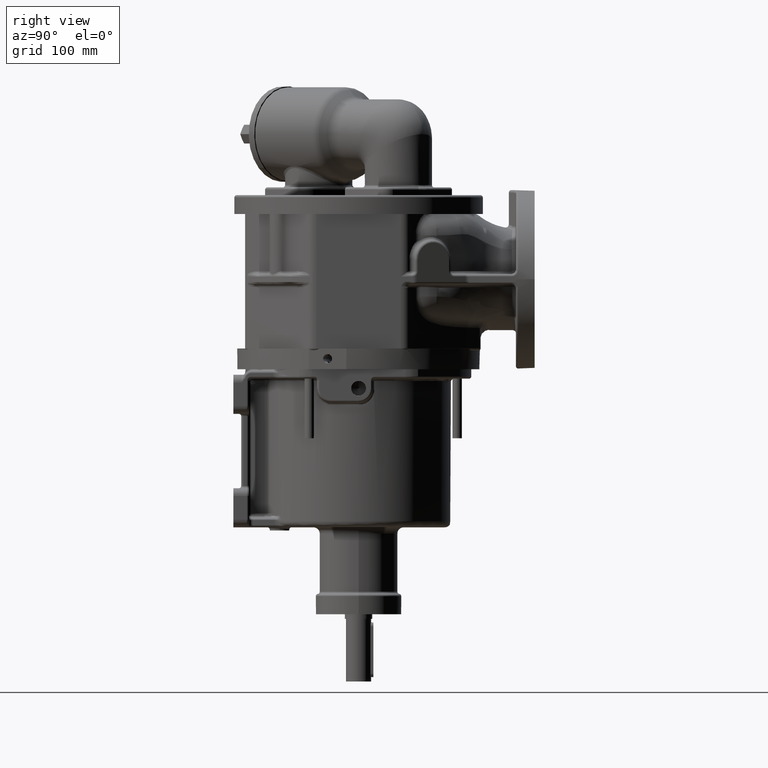
[diagram: clean part render]
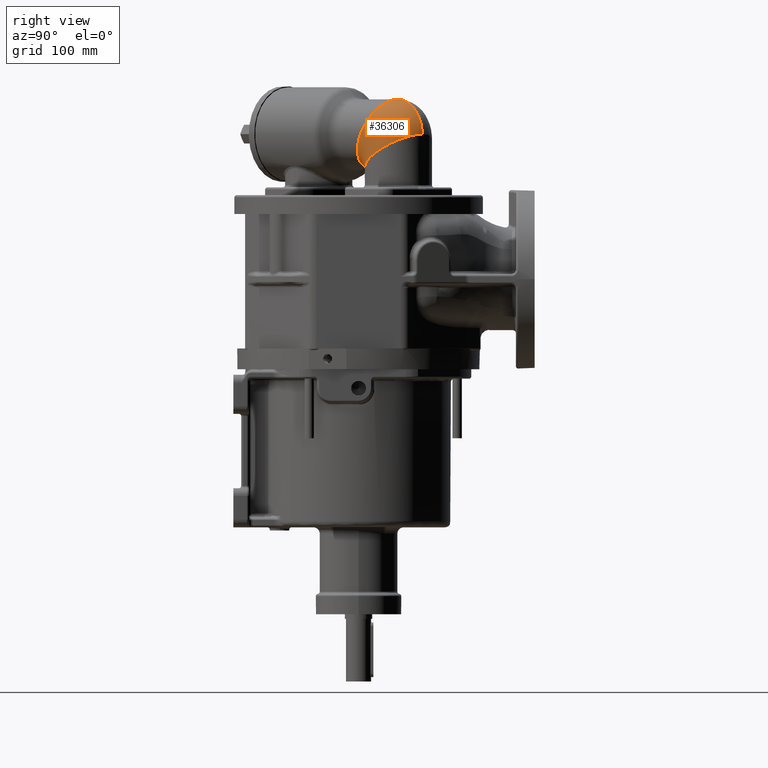
[diagram: same view with one face highlighted and labeled with its STEP entity id]
A machine part, right view. The second image highlights one B-rep face of the part: STEP entity #36306.
In plain terms, the highlighted face is a freeform B-spline surface patch.
Its self-contained STEP definition (entity closure, byte-faithful):
#3552=CARTESIAN_POINT('',(8.131727983645E1,8.131727983645E1,2.705E2));
#3553=CARTESIAN_POINT('',(8.231230049448E1,8.032225917843E1,2.705E2));
#3554=CARTESIAN_POINT('',(8.420457561934E1,7.823445523306E1,2.704220279288E2));
#3555=CARTESIAN_POINT('',(8.672236103078E1,7.483961470347E1,2.700722799795E2));
#3556=CARTESIAN_POINT('',(8.889526970420E1,7.121433554473E1,2.694931104514E2));
#3557=CARTESIAN_POINT('',(9.070237582687E1,6.739353069132E1,2.686900970636E2));
#3558=CARTESIAN_POINT('',(9.212627584882E1,6.341399671277E1,2.676709732742E2));
#3559=CARTESIAN_POINT('',(9.315325686934E1,5.931405866185E1,2.664455538021E2));
#3560=CARTESIAN_POINT('',(9.377342849044E1,5.513320119259E1,2.650256401070E2));
#3561=CARTESIAN_POINT('',(9.398081812291E1,5.091168824541E1,2.634249067338E2));
#3562=CARTESIAN_POINT('',(9.377342849052E1,4.669017529837E1,2.616587696200E2));
#3563=CARTESIAN_POINT('',(9.315325686901E1,4.250931782869E1,2.597442376315E2));
#3564=CARTESIAN_POINT('',(9.212627585005E1,3.840937977933E1,2.576997487579E2));
#3565=CARTESIAN_POINT('',(9.070237582228E1,3.442984579495E1,2.555449925447E2));
#3566=CARTESIAN_POINT('',(8.889526972134E1,3.060904096327E1,2.533007204721E2));
#3567=CARTESIAN_POINT('',(8.672236096684E1,2.698376172347E1,2.509885461071E2));
#3568=CARTESIAN_POINT('',(8.420457585794E1,2.358892149641E1,2.486307369527E2));
#3569=CARTESIAN_POINT('',(8.136616204158E1,2.045721444928E1,2.4625E2));
#3570=CARTESIAN_POINT('',(7.823445499446E1,1.761880063292E1,2.438692630473E2));
#3571=CARTESIAN_POINT('',(7.483961476740E1,1.510101552402E1,2.415114538929E2));
#3572=CARTESIAN_POINT('',(7.121433552759E1,1.292810676953E1,2.391992795278E2));
#3573=CARTESIAN_POINT('',(6.739353069591E1,1.112100066858E1,2.369550074552E2));
#3574=CARTESIAN_POINT('',(6.341399671153E1,9.697100640810E0,2.348002512420E2));
#3575=CARTESIAN_POINT('',(5.931405866218E1,8.670119621851E0,2.327557623684E2));
#3576=CARTESIAN_POINT('',(5.513320119249E1,8.049948000338E0,2.308412303799E2));
#3577=CARTESIAN_POINT('',(5.091168824545E1,7.842558367958E0,2.290750932661E2));
#3578=CARTESIAN_POINT('',(4.669017529827E1,8.049948000420E0,2.274743598929E2));
#3579=CARTESIAN_POINT('',(4.250931782901E1,8.670119621524E0,2.260544461978E2));
#3580=CARTESIAN_POINT('',(3.840937977809E1,9.697100642041E0,2.248290267258E2));
#3581=CARTESIAN_POINT('',(3.442984579954E1,1.112100066400E1,2.238099029363E2));
#3582=CARTESIAN_POINT('',(3.060904094613E1,1.292810678666E1,2.230068895485E2));
#3583=CARTESIAN_POINT('',(2.698376178740E1,1.510101546009E1,2.224277200204E2));
#3584=CARTESIAN_POINT('',(2.358892125781E1,1.761880087153E1,2.220779720711E2));
#3585=CARTESIAN_POINT('',(2.150111731243E1,1.951107599638E1,2.22E2));
#3586=CARTESIAN_POINT('',(2.050609665441E1,2.050609665441E1,2.22E2));
#3609=CARTESIAN_POINT('',(4.985102807365E1,4.985102807365E1,3.15E2));
#3610=CARTESIAN_POINT('',(5.088075875463E1,5.088075875463E1,3.15E2));
#3611=CARTESIAN_POINT('',(5.294021827353E1,5.294021827353E1,3.148569172304E2));
#3612=CARTESIAN_POINT('',(5.599965844069E1,5.599965844069E1,3.142151117151E2));
#3613=CARTESIAN_POINT('',(5.899988353989E1,5.899988353989E1,3.131523057769E2));
#3614=CARTESIAN_POINT('',(6.191200026588E1,6.191200026588E1,3.116787348179E2));
#3615=CARTESIAN_POINT('',(6.470796320801E1,6.470796320801E1,3.098085901320E2));
#3616=CARTESIAN_POINT('',(6.736084575078E1,6.736084575078E1,3.075598822350E2));
#3617=CARTESIAN_POINT('',(6.984509917545E1,6.984509917545E1,3.049542674129E2));
#3618=CARTESIAN_POINT('',(7.213679876608E1,7.213679876608E1,3.020168391612E2));
#3619=CARTESIAN_POINT('',(7.421387420215E1,7.421387420215E1,2.987758865192E2));
#3620=CARTESIAN_POINT('',(7.605632211196E1,7.605632211196E1,2.952626216337E2));
#3621=CARTESIAN_POINT('',(7.764639871490E1,7.764639871490E1,2.915108791623E2));
#3622=CARTESIAN_POINT('',(7.896879070407E1,7.896879070407E1,2.875567904497E2));
#3623=CARTESIAN_POINT('',(8.001076272172E1,8.001076272172E1,2.834384354805E2));
#3624=CARTESIAN_POINT('',(8.076228000772E1,8.076228000773E1,2.791954764551E2));
#3625=CARTESIAN_POINT('',(8.121610503979E1,8.121610503979E1,2.748687746774E2));
#3626=CARTESIAN_POINT('',(8.131727983645E1,8.131727983645E1,2.719562590946E2));
#3627=CARTESIAN_POINT('',(8.131727983645E1,8.131727983645E1,2.705E2));
#3629=CARTESIAN_POINT('',(1.767766952966E1,1.767766952966E1,2.26E2));
#3630=CARTESIAN_POINT('',(1.777022959088E1,1.777022959088E1,2.26E2));
#3631=CARTESIAN_POINT('',(1.795534838338E1,1.795534838338E1,2.259871076123E2));
#3632=CARTESIAN_POINT('',(1.823035736049E1,1.823035736049E1,2.259294634535E2));
#3633=CARTESIAN_POINT('',(1.850003190404E1,1.850003190404E1,2.258338853033E2));
#3634=CARTESIAN_POINT('',(1.876180610517E1,1.876180610517E1,2.257014736369E2));
#3635=CARTESIAN_POINT('',(1.901311405501E1,1.901311405501E1,2.255333289293E2));
#3636=CARTESIAN_POINT('',(1.925159180463E1,1.925159180463E1,2.253312382622E2));
#3637=CARTESIAN_POINT('',(1.947487540509E1,1.947487540509E1,2.250969887173E2));
#3638=CARTESIAN_POINT('',(1.968089262999E1,1.968089262999E1,2.248329852769E2));
#3639=CARTESIAN_POINT('',(1.986757125292E1,1.986757125292E1,2.245416329234E2));
#3640=CARTESIAN_POINT('',(2.003321069459E1,2.003321069459E1,2.242258622274E2));
#3641=CARTESIAN_POINT('',(2.017611037572E1,2.017611037572E1,2.238886037595E2));
#3642=CARTESIAN_POINT('',(2.029500663871E1,2.029500663871E1,2.235332006485E2));
#3643=CARTESIAN_POINT('',(2.038863582595E1,2.038863582595E1,2.231629960230E2));
#3644=CARTESIAN_POINT('',(2.045621978406E1,2.045621978406E1,2.227816186261E2));
#3645=CARTESIAN_POINT('',(2.049698035964E1,2.049698035964E1,2.223926972009E2));
#3646=CARTESIAN_POINT('',(2.050609665441E1,2.050609665441E1,2.221308996939E2));
#3647=CARTESIAN_POINT('',(2.050609665441E1,2.050609665441E1,2.22E2));
#3693=CARTESIAN_POINT('',(4.985102807365E1,4.985102807365E1,3.15E2));
#3694=CARTESIAN_POINT('',(5.088075875463E1,4.882129739267E1,3.15E2));
#3695=CARTESIAN_POINT('',(5.288849407971E1,4.671011367995E1,3.148569172304E2));
#3696=CARTESIAN_POINT('',(5.571592257318E1,4.341866183910E1,3.142151117151E2));
#3697=CARTESIAN_POINT('',(5.833194501493E1,4.003423408245E1,3.131523057769E2));
#3698=CARTESIAN_POINT('',(6.071136818133E1,3.658942379687E1,3.116787348179E2));
#3699=CARTESIAN_POINT('',(6.283127679191E1,3.311740652321E1,3.098085901320E2));
#3700=CARTESIAN_POINT('',(6.467125500398E1,2.965161964971E1,3.075598822349E2));
#3701=CARTESIAN_POINT('',(6.621358281183E1,2.622544060824E1,3.049542674129E2));
#3702=CARTESIAN_POINT('',(6.744340675816E1,2.287186537331E1,3.020168391611E2));
#3703=CARTESIAN_POINT('',(6.834888296538E1,1.962319070838E1,2.987758865193E2));
#3704=CARTESIAN_POINT('',(6.892129120281E1,1.651070312619E1,2.952626216332E2));
#3705=CARTESIAN_POINT('',(6.915511886616E1,1.356437758367E1,2.915108791641E2));
#3706=CARTESIAN_POINT('',(6.904811406724E1,1.081258880640E1,2.875567904429E2));
#3707=CARTESIAN_POINT('',(6.860130732073E1,8.281838024594E0,2.834384355056E2));
#3708=CARTESIAN_POINT('',(6.781900161988E1,5.996497751729E0,2.791954763615E2));
#3709=CARTESIAN_POINT('',(6.670873099621E1,3.978577063926E0,2.748687750266E2));
#3710=CARTESIAN_POINT('',(6.528118796278E1,2.247509640517E0,2.705E2));
#3711=CARTESIAN_POINT('',(6.355012053937E1,8.199666070864E-1,2.661312249734E2));
#3712=CARTESIAN_POINT('',(6.153219985157E1,-2.903040165794E-1,
2.618045236385E2));
#3713=CARTESIAN_POINT('',(5.924685957870E1,-1.072609717439E0,2.575615644944E2));
#3714=CARTESIAN_POINT('',(5.671610879690E1,-1.519416463941E0,2.534432095571E2));
#3715=CARTESIAN_POINT('',(5.396432001963E1,-1.626421262866E0,2.494891208359E2));
#3716=CARTESIAN_POINT('',(5.101799447711E1,-1.392593599511E0,2.457373783668E2));
#3717=CARTESIAN_POINT('',(4.790550689492E1,-8.201853620814E-1,
2.422241134807E2));
#3718=CARTESIAN_POINT('',(4.465683222999E1,8.529084513454E-2,2.389831608389E2));
#3719=CARTESIAN_POINT('',(4.130325699506E1,1.315114791464E0,2.360457325871E2));
#3720=CARTESIAN_POINT('',(3.787707795358E1,2.857442599320E0,2.334401177651E2));
#3721=CARTESIAN_POINT('',(3.441129108009E1,4.697420811381E0,2.311914098680E2));
#3722=CARTESIAN_POINT('',(3.093927380642E1,6.817329421963E0,2.293212651821E2));
#3723=CARTESIAN_POINT('',(2.749446352085E1,9.196752588366E0,2.278476942231E2));
#3724=CARTESIAN_POINT('',(2.411003576420E1,1.181277503012E1,2.267848882849E2));
#3725=CARTESIAN_POINT('',(2.081858392334E1,1.464020352358E1,2.261430827696E2));
#3726=CARTESIAN_POINT('',(1.870740021064E1,1.664793884868E1,2.26E2));
#3727=CARTESIAN_POINT('',(1.767766952966E1,1.767766952966E1,2.26E2));
#26803=VERTEX_POINT('',#3609);
#26804=VERTEX_POINT('',#3627);
#26805=VERTEX_POINT('',#3629);
#26806=VERTEX_POINT('',#3647);
#35631=CARTESIAN_POINT('',(4.838830680384E1,5.051306424364E1,3.149711516381E2));
#35632=CARTESIAN_POINT('',(4.979753646615E1,4.915507422666E1,3.150374009137E2));
#35633=CARTESIAN_POINT('',(5.217888810569E1,4.670088153843E1,3.149270302394E2));
#35634=CARTESIAN_POINT('',(5.533550464694E1,4.303947961343E1,3.142119470028E2));
#35635=CARTESIAN_POINT('',(5.795641625319E1,3.966335103519E1,3.131500131086E2));
#35636=CARTESIAN_POINT('',(6.034143871664E1,3.622819616370E1,3.116780633251E2));
#35637=CARTESIAN_POINT('',(6.246804254846E1,3.276680653450E1,3.098102321010E2));
#35638=CARTESIAN_POINT('',(6.431609787841E1,2.931226853063E1,3.075643189544E2));
#35639=CARTESIAN_POINT('',(6.586806727218E1,2.589768718220E1,3.049616565339E2));
#35640=CARTESIAN_POINT('',(6.710913598938E1,2.255587282343E1,3.020269645012E2));
#35641=CARTESIAN_POINT('',(6.802738243536E1,1.931904061362E1,2.987881567067E2));
#35642=CARTESIAN_POINT('',(6.861388509353E1,1.621848302763E1,2.952761306251E2));
#35643=CARTESIAN_POINT('',(6.886285352205E1,1.328425980923E1,2.915244945396E2));
#35644=CARTESIAN_POINT('',(6.877169903398E1,1.054487231449E1,2.875692899486E2));
#35645=CARTESIAN_POINT('',(6.834109319639E1,8.026977177348E0,2.834486039343E2));
#35646=CARTESIAN_POINT('',(6.757501648974E1,5.755061359488E0,2.792023178905E2));
#35647=CARTESIAN_POINT('',(6.648067924414E1,3.751248198237E0,2.748715130561E2));
#35648=CARTESIAN_POINT('',(6.506857933415E1,2.034947542244E0,2.704982562898E2));
#35649=CARTESIAN_POINT('',(6.335226895044E1,6.228072356775E-1,
2.661250196772E2));
#35650=CARTESIAN_POINT('',(6.134839444349E1,-4.716418830999E-1,
2.617942674126E2));
#35651=CARTESIAN_POINT('',(5.907636398312E1,-1.237923353545E0,
2.575480587223E2));
#35652=CARTESIAN_POINT('',(5.655828003459E1,-1.668847841904E0,
2.534275198075E2));
#35653=CARTESIAN_POINT('',(5.381863223694E1,-1.760475576067E0,
2.494724740369E2));
#35654=CARTESIAN_POINT('',(5.088406842430E1,-1.512135674458E0,
2.457210099129E2));
#35655=CARTESIAN_POINT('',(4.778310023304E1,-9.263888843042E-1,
2.422091256111E2));
#35656=CARTESIAN_POINT('',(4.454581211372E1,-8.946098220617E-3,
2.389703894295E2));
#35657=CARTESIAN_POINT('',(4.120354573237E1,1.231403558427E0,2.360356651366E2));
#35658=CARTESIAN_POINT('',(3.778859116951E1,2.782903946937E0,2.334328588628E2));
#35659=CARTESIAN_POINT('',(3.433386196651E1,4.630908200501E0,2.311867158044E2));
#35660=CARTESIAN_POINT('',(3.087257856051E1,6.757993410052E0,2.293186247611E2));
#35661=CARTESIAN_POINT('',(2.743792833736E1,9.144043863181E0,2.278464515841E2));
#35662=CARTESIAN_POINT('',(2.406271735881E1,1.176637817138E1,2.267843792118E2));
#35663=CARTESIAN_POINT('',(2.040307144227E1,1.492419253948E1,2.260693348443E2));
#35664=CARTESIAN_POINT('',(1.794986702994E1,1.730559460085E1,2.259589139605E2));
#35665=CARTESIAN_POINT('',(1.659202086300E1,1.871406920433E1,2.260250576718E2));
#35666=CARTESIAN_POINT('',(4.955313816216E1,5.167567104946E1,3.149916889239E2));
#35667=CARTESIAN_POINT('',(5.095539678042E1,5.031428938476E1,3.150576030160E2));
#35668=CARTESIAN_POINT('',(5.332553706221E1,4.785037548664E1,3.149472697097E2));
#35669=CARTESIAN_POINT('',(5.646674837335E1,4.416702973089E1,3.142310855466E2));
#35670=CARTESIAN_POINT('',(5.907304171482E1,4.076604982639E1,3.131662912472E2));
#35671=CARTESIAN_POINT('',(6.144140371920E1,3.730205029204E1,3.116892102210E2));
#35672=CARTESIAN_POINT('',(6.354814232568E1,3.380896629020E1,3.098141473485E2));
#35673=CARTESIAN_POINT('',(6.537226093464E1,3.032092699872E1,3.075595380002E2));
#35674=CARTESIAN_POINT('',(6.689566241599E1,2.687184316361E1,3.049476914098E2));
#35675=CARTESIAN_POINT('',(6.810340237281E1,2.349507094303E1,3.020044554269E2));
#35676=CARTESIAN_POINT('',(6.898377804592E1,2.022305996437E1,2.987588768887E2));
#35677=CARTESIAN_POINT('',(6.952845825978E1,1.708707650177E1,2.952428037424E2));
#35678=CARTESIAN_POINT('',(6.973247384550E1,1.411691954178E1,2.914905288964E2));
#35679=CARTESIAN_POINT('',(6.959423660009E1,1.134070682876E1,2.875383664461E2));
#35680=CARTESIAN_POINT('',(6.911548763999E1,8.784626993598E0,2.834243842091E2));
#35681=CARTESIAN_POINT('',(6.830116998680E1,6.472824596346E0,2.791878031711E2));
#35682=CARTESIAN_POINT('',(6.715946361237E1,4.427081690374E0,2.748690451265E2));
#35683=CARTESIAN_POINT('',(6.570144982192E1,2.666883651409E0,2.705089762965E2));
#35684=CARTESIAN_POINT('',(6.394127134875E1,1.208950570183E0,2.661488679263E2));
#35685=CARTESIAN_POINT('',(6.189565124512E1,6.746883352099E-2,
2.618300068090E2));
#35686=CARTESIAN_POINT('',(5.958407876903E1,-7.464362928393E-1,
2.575932734303E2));
#35687=CARTESIAN_POINT('',(5.702837912965E1,-1.224541842727E0,
2.534789969052E2));
#35688=CARTESIAN_POINT('',(5.425269263260E1,-1.361822339368E0,
2.495265133817E2));
#35689=CARTESIAN_POINT('',(5.128322660271E1,-1.156535622058E0,
2.457738857789E2));
#35690=CARTESIAN_POINT('',(4.814807815991E1,-6.103271084263E-1,
2.422575144880E2));
#35691=CARTESIAN_POINT('',(4.487699543627E1,2.716724534305E-1,
2.390117734146E2));
#35692=CARTESIAN_POINT('',(4.150114336129E1,1.480863935129E0,2.360685808516E2));
#35693=CARTESIAN_POINT('',(3.805281783875E1,3.005210582952E0,2.334570035325E2));
#35694=CARTESIAN_POINT('',(3.456516470246E1,4.829429866834E0,2.312028435292E2));
#35695=CARTESIAN_POINT('',(3.107186122656E1,6.935194544456E0,2.293283024939E2));
#35696=CARTESIAN_POINT('',(2.760683404411E1,9.301480110058E0,2.278516859648E2));
#35697=CARTESIAN_POINT('',(2.420399192165E1,1.190490083998E1,2.267872006996E2));
#35698=CARTESIAN_POINT('',(2.051854518262E1,1.504244550741E1,2.260712633384E2));
#35699=CARTESIAN_POINT('',(1.805395829677E1,1.741104467077E1,2.259608908651E2));
#35700=CARTESIAN_POINT('',(1.669352735903E1,1.881335653072E1,2.260266893570E2));
#35701=CARTESIAN_POINT('',(5.175202774614E1,5.387071653592E1,3.148577522739E2));
#35702=CARTESIAN_POINT('',(5.314352284981E1,5.250477377573E1,3.149247486059E2));
#35703=CARTESIAN_POINT('',(5.549589529098E1,5.002557297481E1,3.148173164954E2));
#35704=CARTESIAN_POINT('',(5.861092779227E1,4.630452002744E1,3.141034659208E2));
#35705=CARTESIAN_POINT('',(6.119085322773E1,4.285934105209E1,3.130377994191E2));
#35706=CARTESIAN_POINT('',(6.352779971666E1,3.934290233478E1,3.115562613123E2));
#35707=CARTESIAN_POINT('',(6.559613133743E1,3.579127800122E1,3.096734567438E2));
#35708=CARTESIAN_POINT('',(6.737348532778E1,3.224059085423E1,3.074088845876E2));
#35709=CARTESIAN_POINT('',(6.884098814651E1,2.872635240973E1,3.047864655409E2));
#35710=CARTESIAN_POINT('',(6.998369592205E1,2.528305891740E1,3.018339067097E2));
#35711=CARTESIAN_POINT('',(7.079052886901E1,2.194374344562E1,2.985821102846E2));
#35712=CARTESIAN_POINT('',(7.125441434258E1,1.873976609901E1,2.950644769004E2));
#35713=CARTESIAN_POINT('',(7.137202362995E1,1.570057759740E1,2.913164040506E2));
#35714=CARTESIAN_POINT('',(7.114368286013E1,1.285368769500E1,2.873746308738E2));
#35715=CARTESIAN_POINT('',(7.057312402945E1,1.022449710470E1,2.832771609948E2));
#35716=CARTESIAN_POINT('',(6.966705540848E1,7.836535828622E0,2.790621006599E2));
#35717=CARTESIAN_POINT('',(6.843537509294E1,5.710963928602E0,2.747687505481E2));
#35718=CARTESIAN_POINT('',(6.689019131390E1,3.867330269432E0,2.704359739894E2));
#35719=CARTESIAN_POINT('',(6.504662653899E1,2.322440189867E0,2.661030406874E2));
#35720=CARTESIAN_POINT('',(6.292149728696E1,1.091557398472E0,2.618092807778E2));
#35721=CARTESIAN_POINT('',(6.053435718577E1,1.869292276498E-1,
2.575936269669E2));
#35722=CARTESIAN_POINT('',(5.790649753909E1,-3.814083061226E-1,
2.534950931786E2));
#35723=CARTESIAN_POINT('',(5.506141345506E1,-6.064667936315E-1,
2.495522183381E2));
#35724=CARTESIAN_POINT('',(5.202455394454E1,-4.845046705790E-1,
2.458030247915E2));
#35725=CARTESIAN_POINT('',(4.882335522058E1,-1.537930424270E-2,
2.422845703143E2));
#35726=CARTESIAN_POINT('',(4.548710940460E1,7.970395284456E-1,
2.390325274690E2));
#35727=CARTESIAN_POINT('',(4.204686215221E1,1.944765204045E0,2.360804996137E2));
#35728=CARTESIAN_POINT('',(3.853515871532E1,3.415563294300E0,2.334593820470E2));
#35729=CARTESIAN_POINT('',(3.498580311514E1,5.193307961539E0,2.311966223897E2));
#35730=CARTESIAN_POINT('',(3.143350864874E1,7.258311336657E0,2.293156682160E2));
#35731=CARTESIAN_POINT('',(2.791367434349E1,9.588102367060E0,2.278354981322E2));
#35732=CARTESIAN_POINT('',(2.446223169822E1,1.215810928936E1,2.267703822811E2));
#35733=CARTESIAN_POINT('',(2.073287941329E1,1.526150446287E1,2.260564151309E2));
#35734=CARTESIAN_POINT('',(1.825029571768E1,1.760974689387E1,2.259486605794E2));
#35735=CARTESIAN_POINT('',(1.688661641142E1,1.900261110245E1,2.260156705763E2));
#35736=CARTESIAN_POINT('',(5.494749423575E1,5.706136694408E1,3.141859341817E2));
#35737=CARTESIAN_POINT('',(5.632953366693E1,5.569374534053E1,3.142566402585E2));
#35738=CARTESIAN_POINT('',(5.866485318493E1,5.320055695421E1,3.141573369066E2));
#35739=CARTESIAN_POINT('',(6.174943739153E1,4.943476364771E1,3.134546681213E2));
#35740=CARTESIAN_POINT('',(6.429441789932E1,4.593279395405E1,3.123970349653E2));
#35741=CARTESIAN_POINT('',(6.658612625909E1,4.234579542314E1,3.109208895939E2));
#35742=CARTESIAN_POINT('',(6.859673134658E1,3.871287618694E1,3.090411621280E2));
#35743=CARTESIAN_POINT('',(7.030254626782E1,3.507308809916E1,3.067785067829E2));
#35744=CARTESIAN_POINT('',(7.168424126300E1,3.146443443179E1,3.041585672075E2));
#35745=CARTESIAN_POINT('',(7.272745104218E1,2.792331348630E1,3.012110391505E2));
#35746=CARTESIAN_POINT('',(7.342248694130E1,2.448393596786E1,2.979687762996E2));
#35747=CARTESIAN_POINT('',(7.376443075281E1,2.117814689498E1,2.944667892530E2));
#35748=CARTESIAN_POINT('',(7.375253492299E1,1.803525297287E1,2.907415627715E2));
#35749=CARTESIAN_POINT('',(7.338995550335E1,1.508218791545E1,2.868301694059E2));
#35750=CARTESIAN_POINT('',(7.268324451899E1,1.234347433148E1,2.827703830565E2));
#35751=CARTESIAN_POINT('',(7.164155560821E1,9.841870596543E0,2.785989339761E2));
#35752=CARTESIAN_POINT('',(7.027703009955E1,7.597734046312E0,2.743537184428E2));
#35753=CARTESIAN_POINT('',(6.860311612045E1,5.630565030473E0,2.700712465551E2));
#35754=CARTESIAN_POINT('',(6.663607314504E1,3.957214360603E0,2.657884402567E2));
#35755=CARTESIAN_POINT('',(6.439277448667E1,2.594166124105E0,2.615423475213E2));
#35756=CARTESIAN_POINT('',(6.189270502455E1,1.555080400323E0,2.573696574097E2));
#35757=CARTESIAN_POINT('',(5.915640601458E1,8.523143420507E-1,
2.533078489188E2));
#35758=CARTESIAN_POINT('',(5.620651789878E1,4.955065561919E-1,
2.493945179143E2));
#35759=CARTESIAN_POINT('',(5.306760407896E1,4.912425746192E-1,
2.456675702353E2));
#35760=CARTESIAN_POINT('',(4.976646118941E1,8.423914303468E-1,
2.421647016745E2));
#35761=CARTESIAN_POINT('',(4.633216127694E1,1.547291116053E0,2.389228728600E2));
#35762=CARTESIAN_POINT('',(4.279608905049E1,2.599430986847E0,2.359773432454E2));
#35763=CARTESIAN_POINT('',(3.919170768962E1,3.987067463013E0,2.333607449455E2));
#35764=CARTESIAN_POINT('',(3.555428000697E1,5.693695711753E0,2.311020319133E2));
#35765=CARTESIAN_POINT('',(3.192041333036E1,7.698484678890E0,2.292257258551E2));
#35766=CARTESIAN_POINT('',(2.832780623671E1,9.977522062031E0,2.277513575029E2));
#35767=CARTESIAN_POINT('',(2.481517092750E1,1.250488480356E1,2.266932724424E2));
#35768=CARTESIAN_POINT('',(2.103463568908E1,1.556914458855E1,2.259882784497E2));
#35769=CARTESIAN_POINT('',(1.853514206144E1,1.789756112762E1,2.258875685906E2));
#35770=CARTESIAN_POINT('',(1.717119023515E1,1.928238152444E1,2.259588051588E2));
#35771=CARTESIAN_POINT('',(5.795101603911E1,6.006083862407E1,3.131201259541E2));
#35772=CARTESIAN_POINT('',(5.932910388205E1,5.869575670015E1,3.131944398511E2));
#35773=CARTESIAN_POINT('',(6.165533785599E1,5.619630698911E1,3.131035989121E2));
#35774=CARTESIAN_POINT('',(6.471724029955E1,5.239701033383E1,3.124154399252E2));
#35775=CARTESIAN_POINT('',(6.723196112285E1,4.884810548923E1,3.113715575970E2));
#35776=CARTESIAN_POINT('',(6.948140947216E1,4.519980793331E1,3.099094496608E2));
#35777=CARTESIAN_POINT('',(7.143621012814E1,4.149398433918E1,3.080442150326E2));
#35778=CARTESIAN_POINT('',(7.307196230241E1,3.777242951210E1,3.057972330672E2));
#35779=CARTESIAN_POINT('',(7.436943411822E1,3.407558739242E1,3.031952236358E2));
#35780=CARTESIAN_POINT('',(7.531524569186E1,3.044181369437E1,3.002691310590E2));
#35781=CARTESIAN_POINT('',(7.590137750847E1,2.690667226790E1,2.970529972688E2));
#35782=CARTESIAN_POINT('',(7.612516778778E1,2.350273720158E1,2.935827764623E2));
#35783=CARTESIAN_POINT('',(7.598842540575E1,2.025947505082E1,2.898955077359E2));
#35784=CARTESIAN_POINT('',(7.549698268319E1,1.720354114027E1,2.860282937595E2));
#35785=CARTESIAN_POINT('',(7.465996955114E1,1.435887172765E1,2.820185268740E2));
#35786=CARTESIAN_POINT('',(7.348873740772E1,1.174762996669E1,2.779017789124E2));
#35787=CARTESIAN_POINT('',(7.199733964745E1,9.389534987704E0,2.737147462719E2));
#35788=CARTESIAN_POINT('',(7.020037764220E1,7.303966096203E0,2.694921097042E2));
#35789=CARTESIAN_POINT('',(6.811497676787E1,5.507786713269E0,2.652689691456E2));
#35790=CARTESIAN_POINT('',(6.575803294244E1,4.018380326747E0,2.610806114318E2));
#35791=CARTESIAN_POINT('',(6.314887529455E1,2.850578853881E0,2.569620194589E2));
#35792=CARTESIAN_POINT('',(6.030739945008E1,2.018678768013E0,2.529494645761E2));
#35793=CARTESIAN_POINT('',(5.725554525349E1,1.534644252385E0,2.490797629152E2));
#35794=CARTESIAN_POINT('',(5.401724520687E1,1.407669457191E0,2.453906020692E2));
#35795=CARTESIAN_POINT('',(5.061896881309E1,1.643263616970E0,2.419199647123E2));
#35796=CARTESIAN_POINT('',(4.708993765733E1,2.242108843747E0,2.387054908066E2));
#35797=CARTESIAN_POINT('',(4.346225275797E1,3.199518073492E0,2.357833171401E2));
#35798=CARTESIAN_POINT('',(3.977065865823E1,4.504802930157E0,2.331869349274E2));
#35799=CARTESIAN_POINT('',(3.605215752493E1,6.141759531848E0,2.309459733255E2));
#35800=CARTESIAN_POINT('',(3.234541124902E1,8.089140795144E0,2.290853433982E2));
#35801=CARTESIAN_POINT('',(2.869037516449E1,1.032221211792E1,2.276247171629E2));
#35802=CARTESIAN_POINT('',(2.512822320958E1,1.281409424069E1,2.265784490124E2));
#35803=CARTESIAN_POINT('',(2.131014295964E1,1.584980394422E1,2.258846736977E2));
#35804=CARTESIAN_POINT('',(1.880244451040E1,1.816730977306E1,2.257909247734E2));
#35805=CARTESIAN_POINT('',(1.744195777088E1,1.954910990495E1,2.258664920817E2));
#35806=CARTESIAN_POINT('',(6.086337340701E1,6.296950115028E1,3.116445580433E2));
#35807=CARTESIAN_POINT('',(6.224169582952E1,6.161045755211E1,3.117210295223E2));
#35808=CARTESIAN_POINT('',(6.456473625224E1,5.911100260638E1,3.116370395321E2));
#35809=CARTESIAN_POINT('',(6.760922915408E1,5.528695879780E1,3.109645415831E2));
#35810=CARTESIAN_POINT('',(7.009639996596E1,5.169853977158E1,3.099384707176E2));
#35811=CARTESIAN_POINT('',(7.230473721919E1,4.799564193689E1,3.084975958864E2));
#35812=CARTESIAN_POINT('',(7.420384133391E1,4.422267780542E1,3.066570139823E2));
#35813=CARTESIAN_POINT('',(7.576908638399E1,4.042404453325E1,3.044384411266E2));
#35814=CARTESIAN_POINT('',(7.698178421704E1,3.664259417561E1,3.018691127060E2));
#35815=CARTESIAN_POINT('',(7.782987226340E1,3.291869348375E1,2.989805847179E2));
#35816=CARTESIAN_POINT('',(7.830723273870E1,2.928940999892E1,2.958074294313E2));
#35817=CARTESIAN_POINT('',(7.841355691975E1,2.578825427955E1,2.923859595282E2));
#35818=CARTESIAN_POINT('',(7.815320946340E1,2.244510973070E1,2.887532850854E2));
#35819=CARTESIAN_POINT('',(7.753459948910E1,1.928660825016E1,2.849462325328E2));
#35820=CARTESIAN_POINT('',(7.656926815376E1,1.633635238666E1,2.810016227516E2));
#35821=CARTESIAN_POINT('',(7.527059545330E1,1.361607458764E1,2.769539659267E2));
#35822=CARTESIAN_POINT('',(7.365431416759E1,1.114501222210E1,2.728388441260E2));
#35823=CARTESIAN_POINT('',(7.173606037923E1,8.942395764447E0,2.686894426046E2));
#35824=CARTESIAN_POINT('',(6.953364205836E1,7.025104415392E0,2.645393741710E2));
#35825=CARTESIAN_POINT('',(6.706397984620E1,5.411199001887E0,2.604224955979E2));
#35826=CARTESIAN_POINT('',(6.434620818850E1,4.116522625911E0,2.563724277320E2));
#35827=CARTESIAN_POINT('',(6.139968693089E1,3.157039059848E0,2.524244150463E2));
#35828=CARTESIAN_POINT('',(5.824580275215E1,2.546808886515E0,2.486145477831E2));
#35829=CARTESIAN_POINT('',(5.490808126942E1,2.297473377846E0,2.449801438684E2));
#35830=CARTESIAN_POINT('',(5.141293140168E1,2.417134893310E0,2.415591288160E2));
#35831=CARTESIAN_POINT('',(4.779003228415E1,2.908944416027E0,2.383892794991E2));
#35832=CARTESIAN_POINT('',(4.407251189499E1,3.770326549658E0,2.355069379099E2));
#35833=CARTESIAN_POINT('',(4.029669259182E1,4.992104145278E0,2.329457084324E2));
#35834=CARTESIAN_POINT('',(3.650154466188E1,6.558919540211E0,2.307351892132E2));
#35835=CARTESIAN_POINT('',(3.272791699525E1,8.449690833261E0,2.289000920173E2));
#35836=CARTESIAN_POINT('',(2.901799332003E1,1.063935688162E1,2.274598581109E2));
#35837=CARTESIAN_POINT('',(2.541516354487E1,1.310040208295E1,2.264287496835E2));
#35838=CARTESIAN_POINT('',(2.157016586127E1,1.611503359603E1,2.257465125361E2));
#35839=CARTESIAN_POINT('',(1.906128229526E1,1.842826008957E1,2.256577933615E2));
#35840=CARTESIAN_POINT('',(1.770738421680E1,1.981085144481E1,2.257364000552E2));
#35841=CARTESIAN_POINT('',(6.365736995812E1,6.575993015939E1,3.097742038738E2));
#35842=CARTESIAN_POINT('',(6.503896446494E1,6.440957441187E1,3.098503304961E2));
#35843=CARTESIAN_POINT('',(6.736298698544E1,6.191516123366E1,3.097699787747E2));
#35844=CARTESIAN_POINT('',(7.039370170040E1,5.807411000339E1,3.091123825252E2));
#35845=CARTESIAN_POINT('',(7.285519754680E1,5.445321431594E1,3.081066740681E2));
#35846=CARTESIAN_POINT('',(7.502336247197E1,5.070252036823E1,3.066928726996E2));
#35847=CARTESIAN_POINT('',(7.686724476713E1,4.686870936687E1,3.048858870275E2));
#35848=CARTESIAN_POINT('',(7.836240935436E1,4.299856274941E1,3.027073890695E2));
#35849=CARTESIAN_POINT('',(7.949106306351E1,3.913722135068E1,3.001845978069E2));
#35850=CARTESIAN_POINT('',(8.024268953814E1,3.532703333340E1,2.973490792335E2));
#35851=CARTESIAN_POINT('',(8.061319896941E1,3.160664324268E1,2.942353169325E2));
#35852=CARTESIAN_POINT('',(8.060463526053E1,2.801064443918E1,2.908794255301E2));
#35853=CARTESIAN_POINT('',(8.022383335605E1,2.456954838673E1,2.873181207266E2));
#35854=CARTESIAN_POINT('',(7.948161492034E1,2.131019434360E1,2.835876421398E2));
#35855=CARTESIAN_POINT('',(7.839172253218E1,1.825609538680E1,2.797240328062E2));
#35856=CARTESIAN_POINT('',(7.696937062551E1,1.542873229216E1,2.757607850827E2));
#35857=CARTESIAN_POINT('',(7.523174188660E1,1.284703669829E1,2.717324022883E2));
#35858=CARTESIAN_POINT('',(7.319539787138E1,1.053010442404E1,2.676708252922E2));
#35859=CARTESIAN_POINT('',(7.087868300146E1,8.494863079903E0,2.636084308578E2));
#35860=CARTESIAN_POINT('',(6.829857403814E1,6.759873689928E0,2.595778912475E2));
#35861=CARTESIAN_POINT('',(6.547401791853E1,5.341848380975E0,2.556117188811E2));
#35862=CARTESIAN_POINT('',(6.242397952710E1,4.258157568105E0,2.517442398843E2));
#35863=CARTESIAN_POINT('',(5.916946293240E1,3.524712790062E0,2.480108133476E2));
#35864=CARTESIAN_POINT('',(5.573381119594E1,3.155395263750E0,2.444482034407E2));
#35865=CARTESIAN_POINT('',(5.214361437873E1,3.160777731793E0,2.410939281239E2));
#35866=CARTESIAN_POINT('',(4.842925972182E1,3.546499349023E0,2.379853853847E2));
#35867=CARTESIAN_POINT('',(4.462512778400E1,4.312260643280E0,2.351585023823E2));
#35868=CARTESIAN_POINT('',(4.076930641346E1,5.450718833825E0,2.326463247287E2));
#35869=CARTESIAN_POINT('',(3.690284736637E1,6.947783627777E0,2.304777897674E2));
#35870=CARTESIAN_POINT('',(3.306880968244E1,8.783014979267E0,2.286768863785E2));
#35871=CARTESIAN_POINT('',(2.931149399269E1,1.093145121005E1,2.272624818670E2));
#35872=CARTESIAN_POINT('',(2.567621663005E1,1.336523480684E1,2.262486200985E2));
#35873=CARTESIAN_POINT('',(2.181364289788E1,1.636435046578E1,2.255766695899E2));
#35874=CARTESIAN_POINT('',(1.930928741605E1,1.867811602467E1,2.254895888771E2));
#35875=CARTESIAN_POINT('',(1.796430148545E1,2.006421025477E1,2.255688230382E2));
#35876=CARTESIAN_POINT('',(6.630700103660E1,6.840591357469E1,3.075274897513E2));
#35877=CARTESIAN_POINT('',(6.769365857357E1,6.706592111473E1,3.076002106338E2));
#35878=CARTESIAN_POINT('',(7.002097156771E1,6.458019141531E1,3.075194311682E2));
#35879=CARTESIAN_POINT('',(7.303972831053E1,6.072862599812E1,3.068748749435E2));
#35880=CARTESIAN_POINT('',(7.547646891060E1,5.708173710506E1,3.058911104186E2));
#35881=CARTESIAN_POINT('',(7.760509907154E1,5.329001935360E1,3.045092361674E2));
#35882=CARTESIAN_POINT('',(7.939453726144E1,4.940207863764E1,3.027437840133E2));
#35883=CARTESIAN_POINT('',(8.082088004286E1,4.546678271509E1,3.006160217072E2));
#35884=CARTESIAN_POINT('',(8.186748347940E1,4.153135266038E1,2.981526618955E2));
#35885=CARTESIAN_POINT('',(8.252550089544E1,3.764000274936E1,2.953847273071E2));
#35886=CARTESIAN_POINT('',(8.279288794356E1,3.383294818667E1,2.923460459053E2));
#35887=CARTESIAN_POINT('',(8.267394123914E1,3.014594797694E1,2.890720194993E2));
#35888=CARTESIAN_POINT('',(8.217779325417E1,2.661030463878E1,2.855985352592E2));
#35889=CARTESIAN_POINT('',(8.131744673795E1,2.325326898014E1,2.819609444094E2));
#35890=CARTESIAN_POINT('',(8.010859034039E1,2.009849801584E1,2.781943024776E2));
#35891=CARTESIAN_POINT('',(7.856805135296E1,1.716741198084E1,2.743310880658E2));
#35892=CARTESIAN_POINT('',(7.671423366812E1,1.447882997822E1,2.704047245578E2));
#35893=CARTESIAN_POINT('',(7.456452195114E1,1.205176688632E1,2.664460900141E2));
#35894=CARTESIAN_POINT('',(7.213768567412E1,9.903258392574E0,2.624865056423E2));
#35895=CARTESIAN_POINT('',(6.945081597051E1,8.052231072461E0,2.585576324310E2));
#35896=CARTESIAN_POINT('',(6.652272312679E1,6.516139988188E0,2.546910507069E2));
#35897=CARTESIAN_POINT('',(6.337214643167E1,5.313510483281E0,2.509202177399E2));
#35898=CARTESIAN_POINT('',(6.001989859951E1,4.461840918891E0,2.472797103051E2));
#35899=CARTESIAN_POINT('',(5.648936235714E1,3.976997176937E0,2.438055352614E2));
#35900=CARTESIAN_POINT('',(5.280752338912E1,3.871821553251E0,2.405344594775E2));
#35901=CARTESIAN_POINT('',(4.900566771914E1,4.154352800879E0,2.375030260894E2));
#35902=CARTESIAN_POINT('',(4.511956665515E1,4.826605374992E0,2.347461926833E2));
#35903=CARTESIAN_POINT('',(4.118915001450E1,5.883258698719E0,2.322958613523E2));
#35904=CARTESIAN_POINT('',(3.725754653022E1,7.311784458814E0,2.301797684703E2));
#35905=CARTESIAN_POINT('',(3.336993683360E1,9.092754176491E0,2.284207347218E2));
#35906=CARTESIAN_POINT('',(2.957254141622E1,1.120165946651E1,2.270367522720E2));
#35907=CARTESIAN_POINT('',(2.591226728661E1,1.361056748646E1,2.260415086361E2));
#35908=CARTESIAN_POINT('',(2.203994245211E1,1.659764957058E1,2.253778305325E2));
#35909=CARTESIAN_POINT('',(1.954432540787E1,1.891480853538E1,2.252882847342E2));
#35910=CARTESIAN_POINT('',(1.820964999692E1,2.030591948434E1,2.253651075143E2));
#35911=CARTESIAN_POINT('',(6.878763238724E1,7.088264582079E1,3.049261110871E2));
#35912=CARTESIAN_POINT('',(7.017990753354E1,6.955368065922E1,3.049923147617E2));
#35913=CARTESIAN_POINT('',(7.251096696370E1,6.707880622701E1,3.049069562064E2));
#35914=CARTESIAN_POINT('',(7.551778899890E1,6.322188262393E1,3.042733027089E2));
#35915=CARTESIAN_POINT('',(7.792974625156E1,5.955484977701E1,3.033126437480E2));
#35916=CARTESIAN_POINT('',(8.001918043216E1,5.572876994491E1,3.019669346506E2));
#35917=CARTESIAN_POINT('',(8.175525270752E1,5.179376297899E1,3.002501534434E2));
#35918=CARTESIAN_POINT('',(8.311485702114E1,4.780040524686E1,2.981828378823E2));
#35919=CARTESIAN_POINT('',(8.408265605749E1,4.379770045968E1,2.957907600662E2));
#35920=CARTESIAN_POINT('',(8.465149099966E1,3.983152817726E1,2.931039083439E2));
#35921=CARTESIAN_POINT('',(8.482127183028E1,3.594358840445E1,2.901549539407E2));
#35922=CARTESIAN_POINT('',(8.459834862111E1,3.217082528315E1,2.869781265920E2));
#35923=CARTESIAN_POINT('',(8.399389148597E1,2.854544731137E1,2.836080957146E2));
#35924=CARTESIAN_POINT('',(8.302278573496E1,2.509529457993E1,2.800790452756E2));
#35925=CARTESIAN_POINT('',(8.170236533336E1,2.184439076508E1,2.764248440769E2));
#35926=CARTESIAN_POINT('',(8.005082157103E1,1.881429892986E1,2.726769350188E2));
#35927=CARTESIAN_POINT('',(7.808755176697E1,1.602393614246E1,2.688676373231E2));
#35928=CARTESIAN_POINT('',(7.583066834707E1,1.349232973718E1,2.650268920116E2));
#35929=CARTESIAN_POINT('',(7.329928931666E1,1.123671032465E1,2.611850883593E2));
#35930=CARTESIAN_POINT('',(7.051070543065E1,9.276278024355E0,2.573729907267E2));
#35931=CARTESIAN_POINT('',(6.748368500840E1,7.629120956619E0,2.536213601194E2));
#35932=CARTESIAN_POINT('',(6.423693979662E1,6.314676763341E0,2.499627891326E2));
#35933=CARTESIAN_POINT('',(6.079130325399E1,5.351747946650E0,2.464309888869E2));
#35934=CARTESIAN_POINT('',(5.717041802713E1,4.757881812304E0,2.430609996388E2));
#35935=CARTESIAN_POINT('',(5.340185280308E1,4.547911433206E0,2.398885142074E2));
#35936=CARTESIAN_POINT('',(4.951792332801E1,4.732078854955E0,2.369487984689E2));
#35937=CARTESIAN_POINT('',(4.555584251708E1,5.314624351844E0,2.342753647209E2));
#35938=CARTESIAN_POINT('',(4.155734757976E1,6.292302223135E0,2.318984877114E2));
#35939=CARTESIAN_POINT('',(3.756752203516E1,7.654314346295E0,2.298442660310E2));
#35940=CARTESIAN_POINT('',(3.363346798151E1,9.382506701989E0,2.281339988597E2));
#35941=CARTESIAN_POINT('',(2.980304331935E1,1.145310599162E1,2.267845578023E2));
#35942=CARTESIAN_POINT('',(2.612436392333E1,1.383834291728E1,2.258091378181E2));
#35943=CARTESIAN_POINT('',(2.224850604516E1,1.681480812199E1,2.251517817579E2));
#35944=CARTESIAN_POINT('',(1.976427053349E1,1.913626584564E1,2.250557228683E2));
#35945=CARTESIAN_POINT('',(1.844034169779E1,2.053271986757E1,2.251269761259E2));
#35946=CARTESIAN_POINT('',(7.107616162391E1,7.316691599616E1,3.019948395921E2));
#35947=CARTESIAN_POINT('',(7.247349615123E1,7.184867158772E1,3.020518503221E2));
#35948=CARTESIAN_POINT('',(7.480709684964E1,6.938540728007E1,3.019584134074E2));
#35949=CARTESIAN_POINT('',(7.780042746884E1,6.552697869550E1,3.013340487258E2));
#35950=CARTESIAN_POINT('',(8.018677978825E1,6.184501880309E1,3.003977731342E2));
#35951=CARTESIAN_POINT('',(8.223717447526E1,5.799110332959E1,2.990922198041E2));
#35952=CARTESIAN_POINT('',(8.392134061073E1,5.401639110935E1,2.974306603545E2));
#35953=CARTESIAN_POINT('',(8.521716268515E1,4.997271213667E1,2.954326241644E2));
#35954=CARTESIAN_POINT('',(8.611067300397E1,4.591046857115E1,2.931225772029E2));
#35955=CARTESIAN_POINT('',(8.659631597458E1,4.187692137397E1,2.905290573831E2));
#35956=CARTESIAN_POINT('',(8.667575863844E1,3.791509245331E1,2.876831568013E2));
#35957=CARTESIAN_POINT('',(8.635710840367E1,3.406306971041E1,2.846175422815E2));
#35958=CARTESIAN_POINT('',(8.565322849248E1,3.035403695351E1,2.813653341058E2));
#35959=CARTESIAN_POINT('',(8.458052366469E1,2.681657731068E1,2.779593057509E2));
#35960=CARTESIAN_POINT('',(8.315762951782E1,2.347529563486E1,2.744319634359E2));
#35961=CARTESIAN_POINT('',(8.140382767948E1,2.035211590150E1,2.708136793049E2));
#35962=CARTESIAN_POINT('',(7.933928451365E1,1.746628342785E1,2.671356340641E2));
#35963=CARTESIAN_POINT('',(7.698275435078E1,1.483697355952E1,2.634269145713E2));
#35964=CARTESIAN_POINT('',(7.435366457331E1,1.248172833286E1,2.597170578387E2));
#35965=CARTESIAN_POINT('',(7.146962028145E1,1.041997451971E1,2.560360005672E2));
#35966=CARTESIAN_POINT('',(6.834948881397E1,8.670342110918E0,2.524137465644E2));
#35967=CARTESIAN_POINT('',(6.501218359493E1,7.252949978174E0,2.488819955330E2));
#35968=CARTESIAN_POINT('',(6.147879424580E1,6.187606012630E0,2.454734903383E2));
#35969=CARTESIAN_POINT('',(5.777344409838E1,5.493190218874E0,2.422221025174E2));
#35970=CARTESIAN_POINT('',(5.392444759596E1,5.186172201927E0,2.391621613753E2));
#35971=CARTESIAN_POINT('',(4.996522388736E1,5.278695739505E0,2.363272995909E2));
#35972=CARTESIAN_POINT('',(4.593439352005E1,5.777015182834E0,2.337492003942E2));
#35973=CARTESIAN_POINT('',(4.187535794023E1,6.679879693544E0,2.314561411954E2));
#35974=CARTESIAN_POINT('',(3.783491804100E1,7.978265629502E0,2.294722622536E2));
#35975=CARTESIAN_POINT('',(3.386178817374E1,9.655451981201E0,2.278170928498E2));
#35976=CARTESIAN_POINT('',(3.000509826442E1,1.168861277285E1,2.265062072790E2));
#35977=CARTESIAN_POINT('',(2.631374766107E1,1.405035589396E1,2.255521864728E2));
#35978=CARTESIAN_POINT('',(2.243900236456E1,1.701577229971E1,2.249000647476E2));
#35979=CARTESIAN_POINT('',(1.996727721500E1,1.934067640284E1,2.247942374457E2));
#35980=CARTESIAN_POINT('',(1.865360955367E1,2.074173588062E1,2.248571298066E2));
#35981=CARTESIAN_POINT('',(7.315118130566E1,7.523727357295E1,2.987613214059E2));
#35982=CARTESIAN_POINT('',(7.455211840630E1,7.392860090081E1,2.988073321873E2));
#35983=CARTESIAN_POINT('',(7.688572309611E1,7.147646959625E1,2.987036242561E2));
#35984=CARTESIAN_POINT('',(7.986279248300E1,6.761926313730E1,2.980881617521E2));
#35985=CARTESIAN_POINT('',(8.222218028525E1,6.392705740645E1,2.971781307416E2));
#35986=CARTESIAN_POINT('',(8.423369634170E1,6.005173704224E1,2.959167910641E2));
#35987=CARTESIAN_POINT('',(8.586792039644E1,5.604496548320E1,2.943165914543E2));
#35988=CARTESIAN_POINT('',(8.710385291909E1,5.195929893547E1,2.923958336137E2));
#35989=CARTESIAN_POINT('',(8.792886928961E1,4.784607207375E1,2.901773921638E2));
#35990=CARTESIAN_POINT('',(8.833883453339E1,4.375356516500E1,2.876880253182E2));
#35991=CARTESIAN_POINT('',(8.833687418004E1,3.972588692666E1,2.849569141165E2));
#35992=CARTESIAN_POINT('',(8.793246483033E1,3.580217161069E1,2.820148517851E2));
#35993=CARTESIAN_POINT('',(8.713973847391E1,3.201660691288E1,2.788931476673E2));
#35994=CARTESIAN_POINT('',(8.597619646292E1,2.839865361467E1,2.756229688803E2));
#35995=CARTESIAN_POINT('',(8.446139425680E1,2.497370889287E1,2.722353182976E2));
#35996=CARTESIAN_POINT('',(8.261541019941E1,2.176429527568E1,2.687594608788E2));
#35997=CARTESIAN_POINT('',(8.045896355661E1,1.879024123691E1,2.652254060678E2));
#35998=CARTESIAN_POINT('',(7.801137904042E1,1.607105268809E1,2.616614382725E2));
#35999=CARTESIAN_POINT('',(7.529239645585E1,1.362473409071E1,2.580962896928E2));
#36000=CARTESIAN_POINT('',(7.232008428724E1,1.147094193334E1,2.545591043944E2));
#36001=CARTESIAN_POINT('',(6.911360102273E1,9.628780419884E0,2.510791521952E2));
#36002=CARTESIAN_POINT('',(6.569232698923E1,8.118834985148E0,2.476871910239E2));
#36003=CARTESIAN_POINT('',(6.207787154974E1,6.961608927247E0,2.444148853613E2));
#36004=CARTESIAN_POINT('',(5.829506483801E1,6.176925581188E0,2.412947548168E2));
#36005=CARTESIAN_POINT('',(5.437311002260E1,5.782466210745E0,2.383595209449E2));
#36006=CARTESIAN_POINT('',(5.034655091604E1,5.791874350975E0,2.356409054933E2));
#36007=CARTESIAN_POINT('',(4.625530173047E1,6.213087894279E0,2.331684825163E2));
#36008=CARTESIAN_POINT('',(4.214418125573E1,7.046643005276E0,2.309682876619E2));
#36009=CARTESIAN_POINT('',(3.806135996591E1,8.285215730963E0,2.290623103085E2));
#36010=CARTESIAN_POINT('',(3.405675100295E1,9.913577120454E0,2.274681780927E2));
#36011=CARTESIAN_POINT('',(3.018031284335E1,1.190999603992E1,2.262000716547E2));
#36012=CARTESIAN_POINT('',(2.648126417283E1,1.424765081882E1,2.252698628941E2));
#36013=CARTESIAN_POINT('',(2.261088118325E1,1.720010456256E1,2.246234543638E2));
#36014=CARTESIAN_POINT('',(2.015146575803E1,1.952617376932E1,2.245060504894E2));
#36015=CARTESIAN_POINT('',(1.884678037756E1,2.093025119019E1,2.245585902236E2));
#36016=CARTESIAN_POINT('',(7.499312797764E1,7.707419160925E1,2.952558667437E2));
#36017=CARTESIAN_POINT('',(7.639561159042E1,7.577329370929E1,2.952902885101E2));
#36018=CARTESIAN_POINT('',(7.872581215678E1,7.333087230523E1,2.951759519167E2));
#36019=CARTESIAN_POINT('',(8.168315585953E1,6.947677609883E1,2.945708018627E2));
#36020=CARTESIAN_POINT('',(8.401404649735E1,6.577864171967E1,2.936898394988E2));
#36021=CARTESIAN_POINT('',(8.598712052164E1,6.188834395021E1,2.924770958638E2));
#36022=CARTESIAN_POINT('',(8.757405527047E1,5.785746369781E1,2.909441258682E2));
#36023=CARTESIAN_POINT('',(8.875503153839E1,5.373869018130E1,2.891078527169E2));
#36024=CARTESIAN_POINT('',(8.951865833440E1,4.958374955985E1,2.869893642315E2));
#36025=CARTESIAN_POINT('',(8.986194737142E1,4.544150774525E1,2.846134058568E2));
#36026=CARTESIAN_POINT('',(8.978908944477E1,4.135685962064E1,2.820070155109E2));
#36027=CARTESIAN_POINT('',(8.931045682799E1,3.736983899699E1,2.791988916899E2));
#36028=CARTESIAN_POINT('',(8.844095277745E1,3.351563192911E1,2.762183499721E2));
#36029=CARTESIAN_POINT('',(8.719869928137E1,2.982469897735E1,2.730948120118E2));
#36030=CARTESIAN_POINT('',(8.560375845145E1,2.632344406920E1,2.698576810691E2));
#36031=CARTESIAN_POINT('',(8.367669841296E1,2.303525212944E1,2.665350865187E2));
#36032=CARTESIAN_POINT('',(8.143859007662E1,1.998082096736E1,2.631558448033E2));
#36033=CARTESIAN_POINT('',(7.890927799384E1,1.718022326190E1,2.597474678356E2));
#36034=CARTESIAN_POINT('',(7.610886628678E1,1.465211804354E1,2.563379076352E2));
#36035=CARTESIAN_POINT('',(7.305607682545E1,1.241645118576E1,2.529555261154E2));
#36036=CARTESIAN_POINT('',(6.977060916836E1,1.049276362580E1,2.496288527982E2));
#36037=CARTESIAN_POINT('',(6.627261842448E1,8.901915744472E0,2.463876436939E2));
#36038=CARTESIAN_POINT('',(6.258453208508E1,7.664791682373E0,2.432623766424E2));
#36039=CARTESIAN_POINT('',(5.873212520162E1,6.801734740743E0,2.402840644279E2));
#36040=CARTESIAN_POINT('',(5.474561949988E1,6.331148988021E0,2.374836312462E2));
#36041=CARTESIAN_POINT('',(5.066065894559E1,6.267681975133E0,2.348906977855E2));
#36042=CARTESIAN_POINT('',(4.651826410303E1,6.620512453992E0,2.325325618889E2));
#36043=CARTESIAN_POINT('',(4.236432712228E1,7.391634534879E0,2.304329079860E2));
#36044=CARTESIAN_POINT('',(3.824793653226E1,8.575236729345E0,2.286115194264E2));
#36045=CARTESIAN_POINT('',(3.421969320175E1,1.015754834E1,2.270841165062E2));
#36046=CARTESIAN_POINT('',(3.032986923907E1,1.211802252476E1,2.258634796722E2));
#36047=CARTESIAN_POINT('',(2.662750643668E1,1.443058756292E1,2.249607126566E2));
#36048=CARTESIAN_POINT('',(2.276362669416E1,1.736720128084E1,2.243226323649E2));
#36049=CARTESIAN_POINT('',(2.031527684313E1,1.969118661453E1,2.241938192339E2));
#36050=CARTESIAN_POINT('',(1.901769581406E1,2.109614379309E1,2.242351633399E2));
#36051=CARTESIAN_POINT('',(7.658443724019E1,7.866020916396E1,2.915112291002E2));
#36052=CARTESIAN_POINT('',(7.798616229908E1,7.736490323236E1,2.915349327741E2));
#36053=CARTESIAN_POINT('',(8.030921632114E1,7.493021176780E1,2.914118083183E2));
#36054=CARTESIAN_POINT('',(8.324327026289E1,7.108067539609E1,2.908205622556E2));
#36055=CARTESIAN_POINT('',(8.554436967338E1,6.738081466179E1,2.899727044500E2));
#36056=CARTESIAN_POINT('',(8.748001176630E1,6.348211098589E1,2.888134237485E2));
#36057=CARTESIAN_POINT('',(8.902319088319E1,5.943543114975E1,2.873533626783E2));
#36058=CARTESIAN_POINT('',(9.015527970022E1,5.529294669880E1,2.856079904568E2));
#36059=CARTESIAN_POINT('',(9.086593680831E1,5.110616744586E1,2.835965092640E2));
#36060=CARTESIAN_POINT('',(9.115296365035E1,4.692404801842E1,2.813415217457E2));
#36061=CARTESIAN_POINT('',(9.102113671038E1,4.279191156948E1,2.788677973428E2));
#36062=CARTESIAN_POINT('',(9.048117333596E1,3.875050359142E1,2.762018150873E2));
#36063=CARTESIAN_POINT('',(8.954818568684E1,3.483597716098E1,2.733707997894E2));
#36064=CARTESIAN_POINT('',(8.824039562958E1,3.107991054948E1,2.704023521480E2));
#36065=CARTESIAN_POINT('',(8.657793557620E1,2.750994043872E1,2.673242308828E2));
#36066=CARTESIAN_POINT('',(8.458155148247E1,2.415061249474E1,2.641634162564E2));
#36067=CARTESIAN_POINT('',(8.227248783031E1,2.102381960964E1,2.609475278243E2));
#36068=CARTESIAN_POINT('',(7.967108774627E1,1.815049937544E1,2.577033200450E2));
#36069=CARTESIAN_POINT('',(7.679792871069E1,1.555020697715E1,2.544579734167E2));
#36070=CARTESIAN_POINT('',(7.367262524062E1,1.324330224227E1,2.512390604861E2));
#36071=CARTESIAN_POINT('',(7.031573397421E1,1.124976383658E1,2.480743415049E2));
#36072=CARTESIAN_POINT('',(6.674854363271E1,9.590566816641E0,2.449925060031E2));
#36073=CARTESIAN_POINT('',(6.299464132756E1,8.286665315754E0,2.420227456419E2));
#36074=CARTESIAN_POINT('',(5.908100543993E1,7.358473538673E0,2.391944466376E2));
#36075=CARTESIAN_POINT('',(5.503900124488E1,6.824573820877E0,2.365366076938E2));
#36076=CARTESIAN_POINT('',(5.090531087651E1,6.700036518193E0,2.340766527618E2));
#36077=CARTESIAN_POINT('',(4.672180889093E1,6.994734711689E0,2.318395563554E2));
#36078=CARTESIAN_POINT('',(4.253502802214E1,7.711678499228E0,2.298466840435E2));
#36079=CARTESIAN_POINT('',(3.839442789169E1,8.846277496233E0,2.281157022454E2));
#36080=CARTESIAN_POINT('',(3.435069672760E1,1.038610089697E1,2.266605511158E2));
#36081=CARTESIAN_POINT('',(3.045384220469E1,1.231182582871E1,2.254927010207E2));
#36082=CARTESIAN_POINT('',(2.675220919322E1,1.459830458499E1,2.246224711040E2));
#36083=CARTESIAN_POINT('',(2.289626532226E1,1.751583242924E1,2.239978543817E2));
#36084=CARTESIAN_POINT('',(2.045708247845E1,1.983405368532E1,2.238601379799E2));
#36085=CARTESIAN_POINT('',(1.916439087147E1,2.123755190812E1,2.238908340434E2));
#36086=CARTESIAN_POINT('',(7.790968711411E1,7.998007341995E1,2.875623727698E2));
#36087=CARTESIAN_POINT('',(7.930848667881E1,7.868809143815E1,2.875778055319E2));
#36088=CARTESIAN_POINT('',(8.162091119342E1,7.625904218277E1,2.874501051873E2));
#36089=CARTESIAN_POINT('',(8.452867213993E1,7.241554618547E1,2.868787137028E2));
#36090=CARTESIAN_POINT('',(8.679938365607E1,6.871834579120E1,2.860693186607E2));
#36091=CARTESIAN_POINT('',(8.869951162257E1,6.481813822612E1,2.849689171866E2));
#36092=CARTESIAN_POINT('',(9.020356840336E1,6.076440922194E1,2.835872767501E2));
#36093=CARTESIAN_POINT('',(9.129408645458E1,5.660811360833E1,2.819384159215E2));
#36094=CARTESIAN_POINT('',(9.196152443087E1,5.239987935145E1,2.800396525115E2));
#36095=CARTESIAN_POINT('',(9.220404265131E1,4.818819872797E1,2.779114228804E2));
#36096=CARTESIAN_POINT('',(9.202644648771E1,4.401841714322E1,2.755762128481E2));
#36097=CARTESIAN_POINT('',(9.143917981479E1,3.993177193827E1,2.730582571510E2));
#36098=CARTESIAN_POINT('',(9.045694560043E1,3.596533519676E1,2.703826821549E2));
#36099=CARTESIAN_POINT('',(8.909750916091E1,3.215192577028E1,2.675752592255E2));
#36100=CARTESIAN_POINT('',(8.738062284516E1,2.852065980617E1,2.646621124590E2));
#36101=CARTESIAN_POINT('',(8.532690260318E1,2.509758568777E1,2.616690778555E2));
#36102=CARTESIAN_POINT('',(8.295762072843E1,2.190616583663E1,2.586225955546E2));
#36103=CARTESIAN_POINT('',(8.029363606703E1,1.896857197830E1,2.555486661903E2));
#36104=CARTESIAN_POINT('',(7.735617477564E1,1.630555561018E1,2.524736949299E2));
#36105=CARTESIAN_POINT('',(7.416604167033E1,1.393808911460E1,2.494244435451E2));
#36106=CARTESIAN_POINT('',(7.074504169712E1,1.188663748674E1,2.464278548785E2));
#36107=CARTESIAN_POINT('',(6.711601610139E1,1.017217066609E1,2.435114865038E2));
#36108=CARTESIAN_POINT('',(6.330410534261E1,8.815414774370E0,2.407031565873E2));
#36109=CARTESIAN_POINT('',(5.933777897056E1,7.836389289255E0,2.380305436945E2));
#36110=CARTESIAN_POINT('',(5.524967509246E1,7.253263722794E0,2.355206578806E2));
#36111=CARTESIAN_POINT('',(5.107742368235E1,7.080873685959E0,2.331987286372E2));
#36112=CARTESIAN_POINT('',(4.686344501083E1,7.329145340604E0,2.310874834514E2));
#36113=CARTESIAN_POINT('',(4.265439995723E1,8.001559044034E0,2.292061467074E2));
#36114=CARTESIAN_POINT('',(3.849948596820E1,9.094359149463E0,2.275705047418E2));
#36115=CARTESIAN_POINT('',(3.444879809021E1,1.059626095495E1,2.261929811661E2));
#36116=CARTESIAN_POINT('',(3.055144748343E1,1.248916459326E1,2.250839265332E2));
#36117=CARTESIAN_POINT('',(2.685454739960E1,1.474902412179E1,2.242529051953E2));
#36118=CARTESIAN_POINT('',(2.300773306330E1,1.764451205324E1,2.236495854438E2));
#36119=CARTESIAN_POINT('',(2.057561316005E1,1.995345136043E1,2.235079831366E2));
#36120=CARTESIAN_POINT('',(1.928555950561E1,2.135333831970E1,2.235300855633E2));
#36121=CARTESIAN_POINT('',(7.895574730813E1,8.102086308569E1,2.834462256130E2));
#36122=CARTESIAN_POINT('',(8.034997789997E1,7.973018470577E1,2.834573917071E2));
#36123=CARTESIAN_POINT('',(8.264913632019E1,7.730508135855E1,2.833316634272E2));
#36124=CARTESIAN_POINT('',(8.552880434857E1,7.346966391341E1,2.827883820265E2));
#36125=CARTESIAN_POINT('',(8.776966563484E1,6.978003517392E1,2.820240788875E2));
#36126=CARTESIAN_POINT('',(8.963741215757E1,6.588577387443E1,2.809884683813E2));
#36127=CARTESIAN_POINT('',(9.110826663757E1,6.183429215097E1,2.796905363316E2));
#36128=CARTESIAN_POINT('',(9.216585525697E1,5.767459042478E1,2.781429330330E2));
#36129=CARTESIAN_POINT('',(9.280113145100E1,5.345570135182E1,2.763611935153E2));
#36130=CARTESIAN_POINT('',(9.301211937094E1,4.922505936005E1,2.743636711096E2));
#36131=CARTESIAN_POINT('',(9.280302895773E1,4.502758767426E1,2.721706632844E2));
#36132=CARTESIAN_POINT('',(9.218335382419E1,4.090477340238E1,2.698042357524E2));
#36133=CARTESIAN_POINT('',(9.116672362532E1,3.689455264817E1,2.672874982859E2));
#36134=CARTESIAN_POINT('',(8.976986473378E1,3.303112235626E1,2.646444518551E2));
#36135=CARTESIAN_POINT('',(8.801169476658E1,2.934535526439E1,2.618996508944E2));
#36136=CARTESIAN_POINT('',(8.591240565235E1,2.586519778690E1,2.590778105684E2));
#36137=CARTESIAN_POINT('',(8.349319375661E1,2.261611472676E1,2.562042306294E2));
#36138=CARTESIAN_POINT('',(8.077549890420E1,1.962196194446E1,2.533041503074E2));
#36139=CARTESIAN_POINT('',(7.778144722950E1,1.690505568624E1,2.504031833600E2));
#36140=CARTESIAN_POINT('',(7.453339959619E1,1.448726322783E1,2.475272453836E2));
#36141=CARTESIAN_POINT('',(7.105488541150E1,1.238964180652E1,2.447023947082E2));
#36142=CARTESIAN_POINT('',(6.737078714458E1,1.063308663549E1,2.419549907621E2));
#36143=CARTESIAN_POINT('',(6.350825427273E1,9.237820372224E0,2.393114033236E2));
#36144=CARTESIAN_POINT('',(5.949757448626E1,8.222995275029E0,2.367975610837E2));
#36145=CARTESIAN_POINT('',(5.537280200439E1,7.605740095368E0,2.344384874715E2));
#36146=CARTESIAN_POINT('',(5.117240567516E1,7.399931516961E0,2.322573179514E2));
#36147=CARTESIAN_POINT('',(4.693899699532E1,7.614822522227E0,2.302747329085E2));
#36148=CARTESIAN_POINT('',(4.271878259477E1,8.253723935882E0,2.285081387365E2));
#36149=CARTESIAN_POINT('',(3.855998787857E1,9.313243183592E0,2.269718264877E2));
#36150=CARTESIAN_POINT('',(3.451136370370E1,1.078298215947E1,2.256771034275E2));
#36151=CARTESIAN_POINT('',(3.062044832474E1,1.264603210263E1,2.246334909192E2));
#36152=CARTESIAN_POINT('',(2.693258371741E1,1.487963997528E1,2.238498747388E2));
#36153=CARTESIAN_POINT('',(2.309638020502E1,1.775106813304E1,2.232783297069E2));
#36154=CARTESIAN_POINT('',(2.066951273817E1,2.004795672584E1,2.231403353520E2));
#36155=CARTESIAN_POINT('',(1.938014176139E1,2.144265169159E1,2.231573863581E2));
#36156=CARTESIAN_POINT('',(7.971191671219E1,8.177211080014E1,2.792014153836E2));
#36157=CARTESIAN_POINT('',(8.110082374503E1,8.048129619064E1,2.792137185288E2));
#36158=CARTESIAN_POINT('',(8.338548194094E1,7.805933546478E1,2.790986007872E2));
#36159=CARTESIAN_POINT('',(8.623706791854E1,7.423512793452E1,2.785937068350E2));
#36160=CARTESIAN_POINT('',(8.845016303958E1,7.055885876872E1,2.778821896822E2));
#36161=CARTESIAN_POINT('',(9.029016414149E1,6.667877485700E1,2.769176158747E2));
#36162=CARTESIAN_POINT('',(9.173519728932E1,6.263950590818E1,2.757083356612E2));
#36163=CARTESIAN_POINT('',(9.276989172215E1,5.848733092959E1,2.742657890376E2));
#36164=CARTESIAN_POINT('',(9.338534394511E1,5.426893517735E1,2.726039267293E2));
#36165=CARTESIAN_POINT('',(9.357889204467E1,5.003006463873E1,2.707392056116E2));
#36166=CARTESIAN_POINT('',(9.335346803182E1,4.581474684687E1,2.686899370585E2));
#36167=CARTESIAN_POINT('',(9.271688956360E1,4.166446368295E1,2.664761897061E2));
#36168=CARTESIAN_POINT('',(9.168101217264E1,3.761796264958E1,2.641192246861E2));
#36169=CARTESIAN_POINT('',(9.026092426714E1,3.371098027777E1,2.616413953989E2));
#36170=CARTESIAN_POINT('',(8.847425909520E1,2.997646277146E1,2.590658031977E2));
#36171=CARTESIAN_POINT('',(8.634051370657E1,2.644471256458E1,2.564160809887E2));
#36172=CARTESIAN_POINT('',(8.388075615665E1,2.314369743605E1,2.537164452972E2));
#36173=CARTESIAN_POINT('',(8.111712996031E1,2.009949750093E1,2.509913517329E2));
#36174=CARTESIAN_POINT('',(7.807299785145E1,1.733643980646E1,2.482655908700E2));
#36175=CARTESIAN_POINT('',(7.477271992395E1,1.487766193542E1,2.455641793098E2));
#36176=CARTESIAN_POINT('',(7.124212046196E1,1.274498592890E1,2.429122013758E2));
#36177=CARTESIAN_POINT('',(6.750869098304E1,1.095922218548E1,2.403347480218E2));
#36178=CARTESIAN_POINT('',(6.360211693141E1,9.539846334525E0,2.378566747409E2));
#36179=CARTESIAN_POINT('',(5.955487958017E1,8.504673398223E0,2.355021535593E2));
#36180=CARTESIAN_POINT('',(5.540261587457E1,7.869135920845E0,2.332942850544E2));
#36181=CARTESIAN_POINT('',(5.118451527041E1,7.645370181044E0,2.312543058242E2));
#36182=CARTESIAN_POINT('',(4.694298912867E1,7.841154046970E0,2.294011692716E2));
#36183=CARTESIAN_POINT('',(4.272314681617E1,8.458904292039E0,2.277509290860E2));
#36184=CARTESIAN_POINT('',(3.857146456768E1,9.495043787009E0,2.263169103575E2));
#36185=CARTESIAN_POINT('',(3.453453691299E1,1.093974513168E1,2.251098373759E2));
#36186=CARTESIAN_POINT('',(3.065761783768E1,1.277723717425E1,2.241387898674E2));
#36187=CARTESIAN_POINT('',(2.698374275992E1,1.498627365135E1,2.234120942386E2));
#36188=CARTESIAN_POINT('',(2.316045459277E1,1.783316387349E1,2.228851626509E2));
#36189=CARTESIAN_POINT('',(2.073782418664E1,2.011653813607E1,2.227605009283E2));
#36190=CARTESIAN_POINT('',(1.944780957412E1,2.150539729188E1,2.227773728568E2));
#36191=CARTESIAN_POINT('',(8.018950615536E1,8.224516866965E1,2.746840674602E2));
#36192=CARTESIAN_POINT('',(8.157332687028E1,8.095365038342E1,2.747043460500E2));
#36193=CARTESIAN_POINT('',(8.384353110226E1,7.853556369893E1,2.746110070700E2));
#36194=CARTESIAN_POINT('',(8.666825898397E1,7.472798668492E1,2.741584223868E2));
#36195=CARTESIAN_POINT('',(8.885653144773E1,7.107294905174E1,2.735106858196E2));
#36196=CARTESIAN_POINT('',(9.067422968643E1,6.721727769117E1,2.726267368894E2));
#36197=CARTESIAN_POINT('',(9.210167482194E1,6.320195497583E1,2.715144634742E2));
#36198=CARTESIAN_POINT('',(9.312443061804E1,5.906960195616E1,2.701842804157E2));
#36199=CARTESIAN_POINT('',(9.373333675914E1,5.486364165960E1,2.686487878100E2));
#36200=CARTESIAN_POINT('',(9.392439480629E1,5.062737510738E1,2.669227607985E2));
#36201=CARTESIAN_POINT('',(9.369844156135E1,4.640338127971E1,2.650227557497E2));
#36202=CARTESIAN_POINT('',(9.306074919506E1,4.223286640681E1,2.629670325052E2));
#36203=CARTESIAN_POINT('',(9.202056409603E1,3.815538051159E1,2.607751829476E2));
#36204=CARTESIAN_POINT('',(9.059063448629E1,3.420846747290E1,2.584680306366E2));
#36205=CARTESIAN_POINT('',(8.878680033302E1,3.042761579763E1,2.560673305256E2));
#36206=CARTESIAN_POINT('',(8.662758517638E1,2.684613576666E1,2.535956363539E2));
#36207=CARTESIAN_POINT('',(8.413393132111E1,2.349520589643E1,2.510761069471E2));
#36208=CARTESIAN_POINT('',(8.132891272073E1,2.040389101661E1,2.485323356358E2));
#36209=CARTESIAN_POINT('',(7.823763011533E1,1.759916928324E1,2.459881984048E2));
#36210=CARTESIAN_POINT('',(7.488707946488E1,1.510599994522E1,2.434676945010E2));
#36211=CARTESIAN_POINT('',(7.130617928974E1,1.294726074329E1,2.409947692850E2));
#36212=CARTESIAN_POINT('',(6.752582436834E1,1.114373426559E1,2.385931067859E2));
#36213=CARTESIAN_POINT('',(6.357897643343E1,9.713905822813E0,2.362859176422E2));
#36214=CARTESIAN_POINT('',(5.950085441715E1,8.673718135620E0,2.340955655337E2));
#36215=CARTESIAN_POINT('',(5.532895224728E1,8.036132683033E0,2.320432704463E2));
#36216=CARTESIAN_POINT('',(5.110308666384E1,7.810606174503E0,2.301485847289E2));
#36217=CARTESIAN_POINT('',(4.686502306065E1,8.002472974593E0,2.284291135241E2));
#36218=CARTESIAN_POINT('',(4.265800254951E1,8.612383342850E0,2.269001265781E2));
#36219=CARTESIAN_POINT('',(3.852580680303E1,9.635926780155E0,2.255746374814E2));
#36220=CARTESIAN_POINT('',(3.451188124905E1,1.106349181403E1,2.244634506537E2));
#36221=CARTESIAN_POINT('',(3.065832971810E1,1.288042397437E1,2.235756834993E2));
#36222=CARTESIAN_POINT('',(2.700523881250E1,1.506730343499E1,2.229192414137E2));
#36223=CARTESIAN_POINT('',(2.319921538781E1,1.789023955400E1,2.224541325669E2));
#36224=CARTESIAN_POINT('',(2.078127653510E1,2.015984667896E1,2.223553655880E2));
#36225=CARTESIAN_POINT('',(1.949019792653E1,2.154325084089E1,2.223782146888E2));
#36226=CARTESIAN_POINT('',(8.028548955586E1,8.233865026872E1,2.715753949762E2));
#36227=CARTESIAN_POINT('',(8.166727011664E1,8.104713708377E1,2.716065432788E2));
#36228=CARTESIAN_POINT('',(8.392979975702E1,7.863347669481E1,2.715365430028E2));
#36229=CARTESIAN_POINT('',(8.674002616044E1,7.484235358973E1,2.711290506594E2));
#36230=CARTESIAN_POINT('',(8.891598440699E1,7.120819770586E1,2.705311946854E2));
#36231=CARTESIAN_POINT('',(9.072470446495E1,6.737702628957E1,2.697066160873E2));
#36232=CARTESIAN_POINT('',(9.214816570321E1,6.338679999406E1,2.686630603951E2));
#36233=CARTESIAN_POINT('',(9.317248060602E1,5.927704739574E1,2.674104608696E2));
#36234=CARTESIAN_POINT('',(9.378799738442E1,5.508836543876E1,2.659607772793E2));
#36235=CARTESIAN_POINT('',(9.398932947832E1,5.086188196190E1,2.643279199271E2));
#36236=CARTESIAN_POINT('',(9.377530444796E1,4.663880811422E1,2.625275478654E2));
#36237=CARTESIAN_POINT('',(9.314886033967E1,4.245996935139E1,2.605769486171E2));
#36238=CARTESIAN_POINT('',(9.211690331255E1,3.836544402010E1,2.584948177034E2));
#36239=CARTESIAN_POINT('',(9.069013135087E1,3.439418194761E1,2.563011096098E2));
#36240=CARTESIAN_POINT('',(8.888285155595E1,3.058371852045E1,2.540168117780E2));
#36241=CARTESIAN_POINT('',(8.671277442949E1,2.696986859514E1,2.516637783724E2));
#36242=CARTESIAN_POINT('',(8.420081323986E1,2.358649305792E1,2.492645017584E2));
#36243=CARTESIAN_POINT('',(8.137087262237E1,2.046524892446E1,2.468419324389E2));
#36244=CARTESIAN_POINT('',(7.824963671898E1,1.763538979502E1,2.444192591825E2));
#36245=CARTESIAN_POINT('',(7.486636412652E1,1.512355618553E1,2.420197056395E2));
#36246=CARTESIAN_POINT('',(7.125266915438E1,1.295359319932E1,2.396663236910E2));
#36247=CARTESIAN_POINT('',(6.744232779137E1,1.114636522554E1,2.373817635948E2));
#36248=CARTESIAN_POINT('',(6.347105394336E1,9.719566859145E0,2.351880635279E2));
#36249=CARTESIAN_POINT('',(5.937630363775E1,8.687534974349E0,2.331063879572E2));
#36250=CARTESIAN_POINT('',(5.519701340123E1,8.061032808807E0,2.311568014371E2));
#36251=CARTESIAN_POINT('',(5.097334198484E1,7.847037006878E0,2.293579832884E2));
#36252=CARTESIAN_POINT('',(4.674628310210E1,8.048519293956E0,2.277270268452E2));
#36253=CARTESIAN_POINT('',(4.255724910967E1,8.664272540641E0,2.262792164376E2));
#36254=CARTESIAN_POINT('',(3.844751966210E1,9.688810260812E0,2.250279535825E2));
#36255=CARTESIAN_POINT('',(3.445771181864E1,1.111236309048E1,2.239846829572E2));
#36256=CARTESIAN_POINT('',(3.062721579250E1,1.292098177802E1,2.231589686894E2));
#36257=CARTESIAN_POINT('',(2.699373369467E1,1.509670304708E1,2.225585671157E2));
#36258=CARTESIAN_POINT('',(2.320356443865E1,1.790633804011E1,2.221474657578E2));
#36259=CARTESIAN_POINT('',(2.079029999973E1,2.016841756341E1,2.220758685754E2));
#36260=CARTESIAN_POINT('',(1.949913973750E1,2.154968643742E1,2.221077230233E2));
#36261=CARTESIAN_POINT('',(8.027144661860E1,8.232347678926E1,2.699279855844E2));
#36262=CARTESIAN_POINT('',(8.165292134850E1,8.103243629766E1,2.699664700625E2));
#36263=CARTESIAN_POINT('',(8.391256896504E1,7.862213401596E1,2.699112886717E2));
#36264=CARTESIAN_POINT('',(8.671685287801E1,7.484175544846E1,2.695303494455E2));
#36265=CARTESIAN_POINT('',(8.888809512607E1,7.122089713097E1,2.689606559386E2));
#36266=CARTESIAN_POINT('',(9.069424832059E1,6.740525805328E1,2.681686306112E2));
#36267=CARTESIAN_POINT('',(9.211822217502E1,6.343104694323E1,2.671619976179E2));
#36268=CARTESIAN_POINT('',(9.314639473255E1,5.933598200587E1,2.659505067981E2));
#36269=CARTESIAN_POINT('',(9.376875879755E1,5.515898797170E1,2.645458730500E2));
#36270=CARTESIAN_POINT('',(9.397904968753E1,5.093989452896E1,2.629616445698E2));
#36271=CARTESIAN_POINT('',(9.377485740184E1,4.671907870895E1,2.612131068447E2));
#36272=CARTESIAN_POINT('',(9.315770725719E1,4.253711190936E1,2.593171208374E2));
#36273=CARTESIAN_POINT('',(9.213310281064E1,3.843435315784E1,2.572919879096E2));
#36274=CARTESIAN_POINT('',(9.071052796688E1,3.445055770818E1,2.551572585755E2));
#36275=CARTESIAN_POINT('',(8.890339590454E1,3.062444937733E1,2.529335606754E2));
#36276=CARTESIAN_POINT('',(8.672895453190E1,2.699331907111E1,2.506423840961E2));
#36277=CARTESIAN_POINT('',(8.420813494153E1,2.359261032408E1,2.483058803837E2));
#36278=CARTESIAN_POINT('',(8.136535630355E1,2.045553820288E1,2.459466332275E2));
#36279=CARTESIAN_POINT('',(7.822827994905E1,1.761271830294E1,2.435874383340E2));
#36280=CARTESIAN_POINT('',(7.482751895492E1,1.509183354375E1,2.412510738569E2));
#36281=CARTESIAN_POINT('',(7.119630974553E1,1.291733264507E1,2.389600726500E2));
#36282=CARTESIAN_POINT('',(6.737013810849E1,1.111017092156E1,2.367365077488E2));
#36283=CARTESIAN_POINT('',(6.338634551343E1,9.687603768510E0,2.346017762517E2));
#36284=CARTESIAN_POINT('',(5.928369539905E1,8.663029453206E0,2.325764174028E2));
#36285=CARTESIAN_POINT('',(5.510194979701E1,8.045899542982E0,2.306799261137E2));
#36286=CARTESIAN_POINT('',(5.088142777576E1,7.841683241305E0,2.289306113884E2));
#36287=CARTESIAN_POINT('',(4.666261708321E1,8.051890552348E0,2.273454310004E2));
#36288=CARTESIAN_POINT('',(4.248579490779E1,8.674130772156E0,2.259398579202E2));
#36289=CARTESIAN_POINT('',(3.839071614910E1,9.702191198299E0,2.247276953234E2));
#36290=CARTESIAN_POINT('',(3.441629681644E1,1.112612482672E1,2.237209166016E2));
#36291=CARTESIAN_POINT('',(3.060032555436E1,1.293234076885E1,2.229294571442E2));
#36292=CARTESIAN_POINT('',(2.697914067793E1,1.510371825437E1,2.223610362629E2));
#36293=CARTESIAN_POINT('',(2.319904404452E1,1.790776489363E1,2.219819796413E2));
#36294=CARTESIAN_POINT('',(2.078915924952E1,2.016692705260E1,2.219275547069E2));
#36295=CARTESIAN_POINT('',(1.949848165134E1,2.154789477907E1,2.219655990600E2));
#36296=B_SPLINE_SURFACE_WITH_KNOTS('',3,3,((#35631,#35632,#35633,#35634,#35635,
#35636,#35637,#35638,#35639,#35640,#35641,#35642,#35643,#35644,#35645,#35646,
#35647,#35648,#35649,#35650,#35651,#35652,#35653,#35654,#35655,#35656,#35657,
#35658,#35659,#35660,#35661,#35662,#35663,#35664,#35665),(#35666,#35667,#35668,
#35669,#35670,#35671,#35672,#35673,#35674,#35675,#35676,#35677,#35678,#35679,
#35680,#35681,#35682,#35683,#35684,#35685,#35686,#35687,#35688,#35689,#35690,
#35691,#35692,#35693,#35694,#35695,#35696,#35697,#35698,#35699,#35700),(#35701,
#35702,#35703,#35704,#35705,#35706,#35707,#35708,#35709,#35710,#35711,#35712,
#35713,#35714,#35715,#35716,#35717,#35718,#35719,#35720,#35721,#35722,#35723,
#35724,#35725,#35726,#35727,#35728,#35729,#35730,#35731,#35732,#35733,#35734,
#35735),(#35736,#35737,#35738,#35739,#35740,#35741,#35742,#35743,#35744,#35745,
#35746,#35747,#35748,#35749,#35750,#35751,#35752,#35753,#35754,#35755,#35756,
#35757,#35758,#35759,#35760,#35761,#35762,#35763,#35764,#35765,#35766,#35767,
#35768,#35769,#35770),(#35771,#35772,#35773,#35774,#35775,#35776,#35777,#35778,
#35779,#35780,#35781,#35782,#35783,#35784,#35785,#35786,#35787,#35788,#35789,
#35790,#35791,#35792,#35793,#35794,#35795,#35796,#35797,#35798,#35799,#35800,
#35801,#35802,#35803,#35804,#35805),(#35806,#35807,#35808,#35809,#35810,#35811,
#35812,#35813,#35814,#35815,#35816,#35817,#35818,#35819,#35820,#35821,#35822,
#35823,#35824,#35825,#35826,#35827,#35828,#35829,#35830,#35831,#35832,#35833,
#35834,#35835,#35836,#35837,#35838,#35839,#35840),(#35841,#35842,#35843,#35844,
#35845,#35846,#35847,#35848,#35849,#35850,#35851,#35852,#35853,#35854,#35855,
#35856,#35857,#35858,#35859,#35860,#35861,#35862,#35863,#35864,#35865,#35866,
#35867,#35868,#35869,#35870,#35871,#35872,#35873,#35874,#35875),(#35876,#35877,
#35878,#35879,#35880,#35881,#35882,#35883,#35884,#35885,#35886,#35887,#35888,
#35889,#35890,#35891,#35892,#35893,#35894,#35895,#35896,#35897,#35898,#35899,
#35900,#35901,#35902,#35903,#35904,#35905,#35906,#35907,#35908,#35909,#35910),(
#35911,#35912,#35913,#35914,#35915,#35916,#35917,#35918,#35919,#35920,#35921,
#35922,#35923,#35924,#35925,#35926,#35927,#35928,#35929,#35930,#35931,#35932,
#35933,#35934,#35935,#35936,#35937,#35938,#35939,#35940,#35941,#35942,#35943,
#35944,#35945),(#35946,#35947,#35948,#35949,#35950,#35951,#35952,#35953,#35954,
#35955,#35956,#35957,#35958,#35959,#35960,#35961,#35962,#35963,#35964,#35965,
#35966,#35967,#35968,#35969,#35970,#35971,#35972,#35973,#35974,#35975,#35976,
#35977,#35978,#35979,#35980),(#35981,#35982,#35983,#35984,#35985,#35986,#35987,
#35988,#35989,#35990,#35991,#35992,#35993,#35994,#35995,#35996,#35997,#35998,
#35999,#36000,#36001,#36002,#36003,#36004,#36005,#36006,#36007,#36008,#36009,
#36010,#36011,#36012,#36013,#36014,#36015),(#36016,#36017,#36018,#36019,#36020,
#36021,#36022,#36023,#36024,#36025,#36026,#36027,#36028,#36029,#36030,#36031,
#36032,#36033,#36034,#36035,#36036,#36037,#36038,#36039,#36040,#36041,#36042,
#36043,#36044,#36045,#36046,#36047,#36048,#36049,#36050),(#36051,#36052,#36053,
#36054,#36055,#36056,#36057,#36058,#36059,#36060,#36061,#36062,#36063,#36064,
#36065,#36066,#36067,#36068,#36069,#36070,#36071,#36072,#36073,#36074,#36075,
#36076,#36077,#36078,#36079,#36080,#36081,#36082,#36083,#36084,#36085),(#36086,
#36087,#36088,#36089,#36090,#36091,#36092,#36093,#36094,#36095,#36096,#36097,
#36098,#36099,#36100,#36101,#36102,#36103,#36104,#36105,#36106,#36107,#36108,
#36109,#36110,#36111,#36112,#36113,#36114,#36115,#36116,#36117,#36118,#36119,
#36120),(#36121,#36122,#36123,#36124,#36125,#36126,#36127,#36128,#36129,#36130,
#36131,#36132,#36133,#36134,#36135,#36136,#36137,#36138,#36139,#36140,#36141,
#36142,#36143,#36144,#36145,#36146,#36147,#36148,#36149,#36150,#36151,#36152,
#36153,#36154,#36155),(#36156,#36157,#36158,#36159,#36160,#36161,#36162,#36163,
#36164,#36165,#36166,#36167,#36168,#36169,#36170,#36171,#36172,#36173,#36174,
#36175,#36176,#36177,#36178,#36179,#36180,#36181,#36182,#36183,#36184,#36185,
#36186,#36187,#36188,#36189,#36190),(#36191,#36192,#36193,#36194,#36195,#36196,
#36197,#36198,#36199,#36200,#36201,#36202,#36203,#36204,#36205,#36206,#36207,
#36208,#36209,#36210,#36211,#36212,#36213,#36214,#36215,#36216,#36217,#36218,
#36219,#36220,#36221,#36222,#36223,#36224,#36225),(#36226,#36227,#36228,#36229,
#36230,#36231,#36232,#36233,#36234,#36235,#36236,#36237,#36238,#36239,#36240,
#36241,#36242,#36243,#36244,#36245,#36246,#36247,#36248,#36249,#36250,#36251,
#36252,#36253,#36254,#36255,#36256,#36257,#36258,#36259,#36260),(#36261,#36262,
#36263,#36264,#36265,#36266,#36267,#36268,#36269,#36270,#36271,#36272,#36273,
#36274,#36275,#36276,#36277,#36278,#36279,#36280,#36281,#36282,#36283,#36284,
#36285,#36286,#36287,#36288,#36289,#36290,#36291,#36292,#36293,#36294,#36295)),
.UNSPECIFIED.,.F.,.F.,.F.,(4,1,1,1,1,1,1,1,1,1,1,1,1,1,1,1,4),(4,1,1,1,1,1,1,1,
1,1,1,1,1,1,1,1,1,1,1,1,1,1,1,1,1,1,1,1,1,1,1,1,4),(-7.886658212963E-3,6.25E-2,
1.25E-1,1.875E-1,2.5E-1,3.125E-1,3.75E-1,4.375E-1,5.E-1,5.625E-1,6.25E-1,
6.875E-1,7.5E-1,8.125E-1,8.75E-1,9.375E-1,1.007957780544E0),(-1.074522027039E-2,
3.125E-2,6.25E-2,9.375E-2,1.25E-1,1.5625E-1,1.875E-1,2.1875E-1,2.5E-1,2.8125E-1,
3.125E-1,3.4375E-1,3.75E-1,4.0625E-1,4.375E-1,4.6875E-1,5.E-1,5.3125E-1,
5.625E-1,5.9375E-1,6.25E-1,6.5625E-1,6.875E-1,7.1875E-1,7.5E-1,7.8125E-1,
8.125E-1,8.4375E-1,8.75E-1,9.0625E-1,9.375E-1,9.6875E-1,1.010731519084E0),
.UNSPECIFIED.);
#36298=ORIENTED_EDGE('',*,*,#36297,.T.);
#36299=ORIENTED_EDGE('',*,*,#35623,.T.);
#36301=ORIENTED_EDGE('',*,*,#36300,.F.);
#36303=ORIENTED_EDGE('',*,*,#36302,.F.);
#36304=EDGE_LOOP('',(#36298,#36299,#36301,#36303));
#36305=FACE_OUTER_BOUND('',#36304,.F.);
#36306=ADVANCED_FACE('',(#36305),#36296,.F.);
#3587=B_SPLINE_CURVE_WITH_KNOTS('',3,(#3552,#3553,#3554,#3555,#3556,#3557,#3558,
#3559,#3560,#3561,#3562,#3563,#3564,#3565,#3566,#3567,#3568,#3569,#3570,#3571,
#3572,#3573,#3574,#3575,#3576,#3577,#3578,#3579,#3580,#3581,#3582,#3583,#3584,
#3585,#3586),.UNSPECIFIED.,.F.,.F.,(4,1,1,1,1,1,1,1,1,1,1,1,1,1,1,1,1,1,1,1,1,1,
1,1,1,1,1,1,1,1,1,1,4),(0.E0,3.125E-2,6.25E-2,9.375E-2,1.25E-1,1.5625E-1,
1.875E-1,2.1875E-1,2.5E-1,2.8125E-1,3.125E-1,3.4375E-1,3.75E-1,4.0625E-1,
4.375E-1,4.6875E-1,5.E-1,5.3125E-1,5.625E-1,5.9375E-1,6.25E-1,6.5625E-1,
6.875E-1,7.1875E-1,7.5E-1,7.8125E-1,8.125E-1,8.4375E-1,8.75E-1,9.0625E-1,
9.375E-1,9.6875E-1,1.E0),.UNSPECIFIED.);
#3628=B_SPLINE_CURVE_WITH_KNOTS('',3,(#3609,#3610,#3611,#3612,#3613,#3614,#3615,
#3616,#3617,#3618,#3619,#3620,#3621,#3622,#3623,#3624,#3625,#3626,#3627),
.UNSPECIFIED.,.F.,.F.,(4,1,1,1,1,1,1,1,1,1,1,1,1,1,1,1,4),(0.E0,6.25E-2,1.25E-1,
1.875E-1,2.5E-1,3.125E-1,3.75E-1,4.375E-1,5.E-1,5.625E-1,6.25E-1,6.875E-1,
7.5E-1,8.125E-1,8.75E-1,9.375E-1,1.E0),.UNSPECIFIED.);
#3648=B_SPLINE_CURVE_WITH_KNOTS('',3,(#3629,#3630,#3631,#3632,#3633,#3634,#3635,
#3636,#3637,#3638,#3639,#3640,#3641,#3642,#3643,#3644,#3645,#3646,#3647),
.UNSPECIFIED.,.F.,.F.,(4,1,1,1,1,1,1,1,1,1,1,1,1,1,1,1,4),(0.E0,6.25E-2,1.25E-1,
1.875E-1,2.5E-1,3.125E-1,3.75E-1,4.375E-1,5.E-1,5.625E-1,6.25E-1,6.875E-1,
7.5E-1,8.125E-1,8.75E-1,9.375E-1,1.E0),.UNSPECIFIED.);
#3728=B_SPLINE_CURVE_WITH_KNOTS('',3,(#3693,#3694,#3695,#3696,#3697,#3698,#3699,
#3700,#3701,#3702,#3703,#3704,#3705,#3706,#3707,#3708,#3709,#3710,#3711,#3712,
#3713,#3714,#3715,#3716,#3717,#3718,#3719,#3720,#3721,#3722,#3723,#3724,#3725,
#3726,#3727),.UNSPECIFIED.,.F.,.F.,(4,1,1,1,1,1,1,1,1,1,1,1,1,1,1,1,1,1,1,1,1,1,
1,1,1,1,1,1,1,1,1,1,4),(0.E0,3.125E-2,6.25E-2,9.375E-2,1.25E-1,1.5625E-1,
1.875E-1,2.1875E-1,2.5E-1,2.8125E-1,3.125E-1,3.4375E-1,3.75E-1,4.0625E-1,
4.375E-1,4.6875E-1,5.E-1,5.3125E-1,5.625E-1,5.9375E-1,6.25E-1,6.5625E-1,
6.875E-1,7.1875E-1,7.5E-1,7.8125E-1,8.125E-1,8.4375E-1,8.75E-1,9.0625E-1,
9.375E-1,9.6875E-1,1.E0),.UNSPECIFIED.);
#35623=EDGE_CURVE('',#26804,#26806,#3587,.T.);
#36297=EDGE_CURVE('',#26803,#26804,#3628,.T.);
#36300=EDGE_CURVE('',#26805,#26806,#3648,.T.);
#36302=EDGE_CURVE('',#26803,#26805,#3728,.T.);